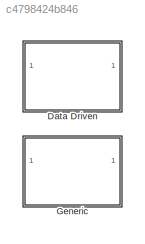
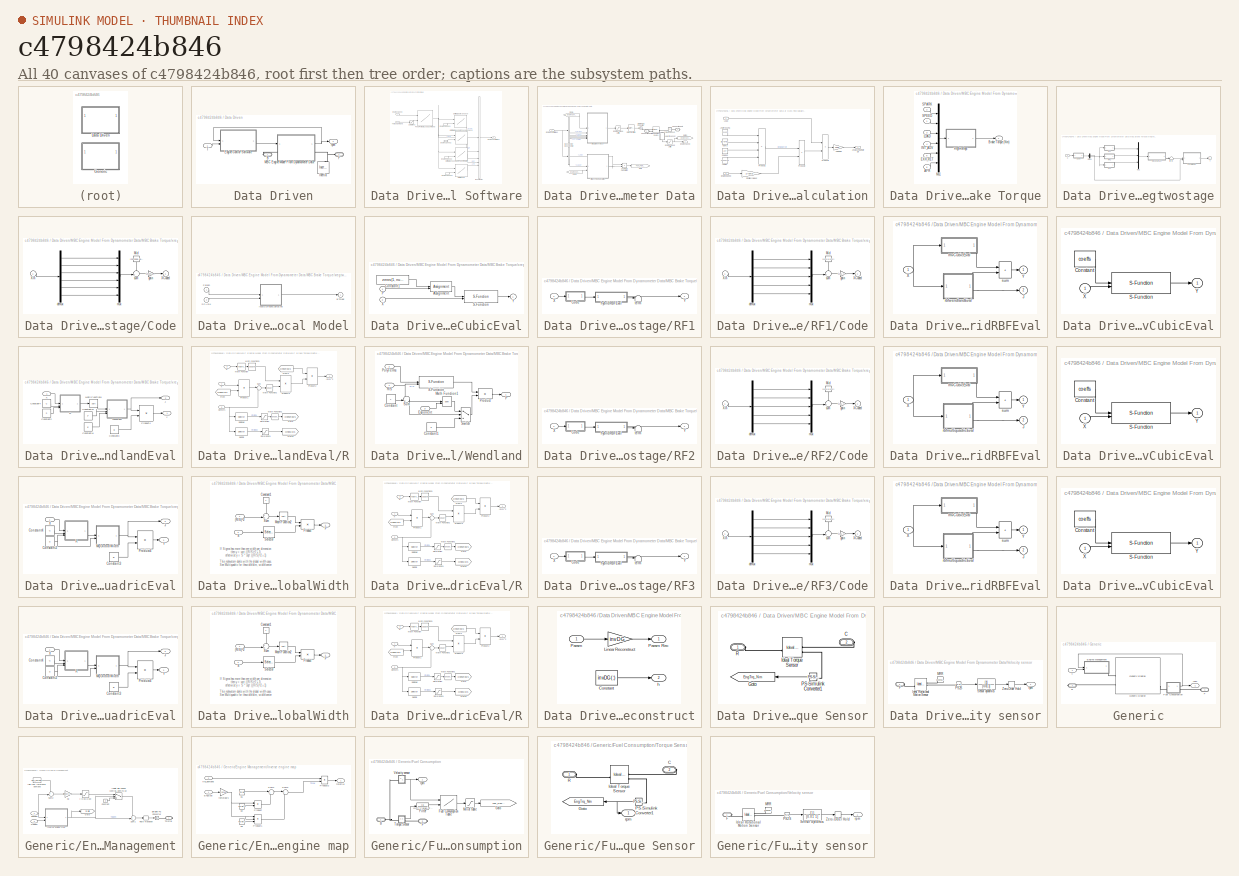
[diagram: thumbnail index - all 40 canvases of the model, root first then tree order]
MODEL slx_c4798424b846
KIND library
CONFIG EnableMultiTasking = on
CONFIG SolverName = ode45
BLOCK [SubSystem] Data Driven
BLOCK [PMIOPort] Data Driven/B
  Side = Right
BLOCK [SubSystem] Data Driven/Engine Control Software
BLOCK [BusCreator] Data Driven/Engine Control Software/Bus Creator
  DisplayOption = bar
  InheritFromInputs = on
  Inputs = 5
BLOCK [Outport] Data Driven/Engine Control Software/Engine Control Bus
  VectorParamsAs1DForOutWhenUnconnected = off
BLOCK [Inport] Data Driven/Engine Control Software/Engine Speed
BLOCK [InportShadow] Data Driven/Engine Control Software/Engine Speed1
BLOCK [InportShadow] Data Driven/Engine Control Software/Engine Speed2
BLOCK [InportShadow] Data Driven/Engine Control Software/Engine Speed3
BLOCK [InportShadow] Data Driven/Engine Control Software/Engine Speed4
BLOCK [Lookup2D] Data Driven/Engine Control Software/Feed-Forward Load Command
  ColumnIndex = Load_Table.X
  InputSameDT = off
  LookUpMeth = Interpolation-Use End Values
  RowIndex = Load_Table.Y
  SaturateOnIntegerOverflow = off
  Table = Load_Table.Z
BLOCK [Lookup2D] Data Driven/Engine Control Software/Optimal AFR
  ColumnIndex = AFR_Table.X
  InputSameDT = off
  LookUpMeth = Interpolation-Use End Values
  RowIndex = AFR_Table.Y
  SaturateOnIntegerOverflow = off
  Table = AFR_Table.Z
BLOCK [Lookup2D] Data Driven/Engine Control Software/Optimal Exhaust Cam Phaser Retard
  ColumnIndex = ECP_Table.X
  InputSameDT = off
  LookUpMeth = Interpolation-Use End Values
  RowIndex = ECP_Table.Y
  SaturateOnIntegerOverflow = off
  Table = ECP_Table.Z
BLOCK [Lookup2D] Data Driven/Engine Control Software/Optimal Intake Cam Phaser Advance
  ColumnIndex = ICP_Table.X
  InputSameDT = off
  LookUpMeth = Interpolation-Use End Values
  RowIndex = ICP_Table.Y
  SaturateOnIntegerOverflow = off
  Table = ICP_Table.Z
BLOCK [Lookup2D] Data Driven/Engine Control Software/Optimal Spark Advance
  ColumnIndex = S_Table.X
  InputSameDT = off
  LookUpMeth = Interpolation-Use End Values
  RowIndex = S_Table.Y
  SaturateOnIntegerOverflow = off
  Table = S_Table.Z
BLOCK [Saturate] Data Driven/Engine Control Software/Saturation2
  LowerLimit = 0
  UpperLimit = inf
BLOCK [Inport] Data Driven/Engine Control Software/Torque Demand
  Port = 2
BLOCK [PMIOPort] Data Driven/F
  Port = 2
  Side = Left
BLOCK [Reference] Data Driven/Inertia  REF=fl_lib/Mechanical/Rotational Elements/Inertia
  NameLocation = right
  SourceBlock = fl_lib/Mechanical/Rotational Elements/Inertia
  SourceType = Inertia
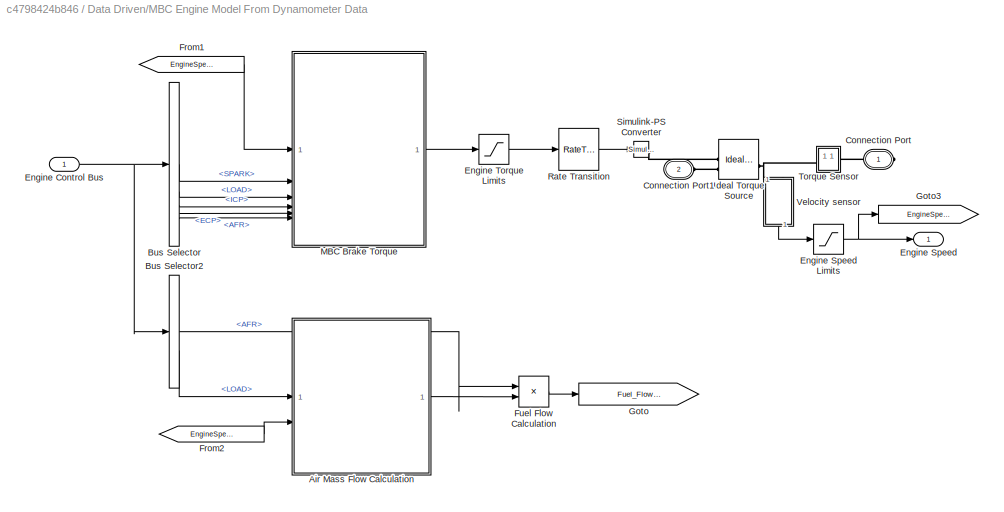
BLOCK [SubSystem] Data Driven/MBC Engine Model From Dynamometer Data
BLOCK [SubSystem] Data Driven/MBC Engine Model From Dynamometer Data/Air Mass Flow Calculation
BLOCK [Constant] Data Driven/MBC Engine Model From Dynamometer Data/Air Mass Flow Calculation/ATM Press Pa
  Value = 101325
BLOCK [Constant] Data Driven/MBC Engine Model From Dynamometer Data/Air Mass Flow Calculation/ATM T K
  Value = 273.15+20
BLOCK [Outport] Data Driven/MBC Engine Model From Dynamometer Data/Air Mass Flow Calculation/Air Mass Flow Rate g//s
  VectorParamsAs1DForOutWhenUnconnected = off
BLOCK [Inport] Data Driven/MBC Engine Model From Dynamometer Data/Air Mass Flow Calculation/Engine Speed
  Port = 2
BLOCK [Gain] Data Driven/MBC Engine Model From Dynamometer Data/Air Mass Flow Calculation/Kg//s to g//s
  Gain = 1000
BLOCK [Inport] Data Driven/MBC Engine Model From Dynamometer Data/Air Mass Flow Calculation/Load
BLOCK [Product] Data Driven/MBC Engine Model From Dynamometer Data/Air Mass Flow Calculation/Product1
  InputSameDT = on
  Inputs = **//
  OutDataTypeStr = Inherit: Same as first input
  SaturateOnIntegerOverflow = on
BLOCK [Product] Data Driven/MBC Engine Model From Dynamometer Data/Air Mass Flow Calculation/Product2
  InputSameDT = on
  Inputs = **
  OutDataTypeStr = Inherit: Same as first input
  SaturateOnIntegerOverflow = on
BLOCK [Product] Data Driven/MBC Engine Model From Dynamometer Data/Air Mass Flow Calculation/Product3
  InputSameDT = on
  Inputs = **
  OutDataTypeStr = Inherit: Same as first input
  SaturateOnIntegerOverflow = on
BLOCK [Constant] Data Driven/MBC Engine Model From Dynamometer Data/Air Mass Flow Calculation/R J//KgK1
  Value = 287
BLOCK [Gain] Data Driven/MBC Engine Model From Dynamometer Data/Air Mass Flow Calculation/RPM to cycle//sec
  Gain = 1/(60*2)
  OutDataTypeStr = Inherit: Same as input
  ParamDataTypeStr = Inherit: Same as input
  SaturateOnIntegerOverflow = on
BLOCK [Constant] Data Driven/MBC Engine Model From Dynamometer Data/Air Mass Flow Calculation/Vd m^3
  Value = ((.25*pi*(84/1000)^2)*96.4/1000)*4
BLOCK [BusSelector] Data Driven/MBC Engine Model From Dynamometer Data/Bus Selector
  OutputSignals = SPARK,LOAD,ICP,ECP,AFR
BLOCK [BusSelector] Data Driven/MBC Engine Model From Dynamometer Data/Bus Selector2
  OutputSignals = AFR,LOAD
BLOCK [PMIOPort] Data Driven/MBC Engine Model From Dynamometer Data/Connection Port
  NameLocation = top
  Side = Right
BLOCK [PMIOPort] Data Driven/MBC Engine Model From Dynamometer Data/Connection Port1
  Port = 2
  Side = Left
BLOCK [Inport] Data Driven/MBC Engine Model From Dynamometer Data/Engine Control Bus
BLOCK [Outport] Data Driven/MBC Engine Model From Dynamometer Data/Engine Speed
  VectorParamsAs1DForOutWhenUnconnected = off
BLOCK [Saturate] Data Driven/MBC Engine Model From Dynamometer Data/Engine Speed Limits
  LowerLimit = 500
  UpperLimit = inf
BLOCK [Saturate] Data Driven/MBC Engine Model From Dynamometer Data/Engine Torque Limits
  LowerLimit = 0.1
  UpperLimit = Inf
BLOCK [From] Data Driven/MBC Engine Model From Dynamometer Data/From1
  GotoTag = EngineSpeed
  TagVisibility = global
BLOCK [From] Data Driven/MBC Engine Model From Dynamometer Data/From2
  GotoTag = EngineSpeed
  TagVisibility = global
BLOCK [Product] Data Driven/MBC Engine Model From Dynamometer Data/Fuel Flow Calculation
  Inputs = /*
  RndMeth = Zero
BLOCK [Goto] Data Driven/MBC Engine Model From Dynamometer Data/Goto
  GotoTag = Fuel_Flow_gps
  TagVisibility = global
BLOCK [Goto] Data Driven/MBC Engine Model From Dynamometer Data/Goto3
  GotoTag = EngineSpeed
  TagVisibility = global
BLOCK [Reference] Data Driven/MBC Engine Model From Dynamometer Data/Ideal Torque Source  REF=fl_lib/Mechanical/Mechanical Sources/Ideal Torque Source
  NameLocation = top
  SourceBlock = fl_lib/Mechanical/Mechanical Sources/Ideal Torque Source
  SourceType = Ideal Torque Source
BLOCK [SubSystem] Data Driven/MBC Engine Model From Dynamometer Data/MBC Brake Torque
BLOCK [Inport] Data Driven/MBC Engine Model From Dynamometer Data/MBC Brake Torque/AFR
  Port = 6
BLOCK [Outport] Data Driven/MBC Engine Model From Dynamometer Data/MBC Brake Torque/Brake Torque (Nm)
  VectorParamsAs1DForOutWhenUnconnected = off
BLOCK [Inport] Data Driven/MBC Engine Model From Dynamometer Data/MBC Brake Torque/EXH_RET
  Port = 5
BLOCK [Inport] Data Driven/MBC Engine Model From Dynamometer Data/MBC Brake Torque/INT_ADV
  Port = 4
BLOCK [Inport] Data Driven/MBC Engine Model From Dynamometer Data/MBC Brake Torque/LOAD
  Port = 3
BLOCK [Mux] Data Driven/MBC Engine Model From Dynamometer Data/MBC Brake Torque/Mx1
  DisplayOption = bar
  Inputs = 6
BLOCK [Inport] Data Driven/MBC Engine Model From Dynamometer Data/MBC Brake Torque/SPARK
  Port = 2
BLOCK [Inport] Data Driven/MBC Engine Model From Dynamometer Data/MBC Brake Torque/SPEED
BLOCK [SubSystem] Data Driven/MBC Engine Model From Dynamometer Data/MBC Brake Torque/xregtwostage
BLOCK [SubSystem] Data Driven/MBC Engine Model From Dynamometer Data/MBC Brake Torque/xregtwostage/Code
BLOCK [Constant] Data Driven/MBC Engine Model From Dynamometer Data/MBC Brake Torque/xregtwostage/Code/Mid
  NameLocation = right
  Value = [25 3255.40527503736 0.832989154540633 22.4723365216774 22.4387901165607 12.6 ]
BLOCK [Outport] Data Driven/MBC Engine Model From Dynamometer Data/MBC Brake Torque/xregtwostage/Code/XCoded
  VectorParamsAs1DForOutWhenUnconnected = off
BLOCK [Inport] Data Driven/MBC Engine Model From Dynamometer Data/MBC Brake Torque/xregtwostage/Code/XIn
BLOCK [Demux] Data Driven/MBC Engine Model From Dynamometer Data/MBC Brake Torque/xregtwostage/Code/demux
  DisplayOption = none
  Outputs = 6
BLOCK [Gain] Data Driven/MBC Engine Model From Dynamometer Data/MBC Brake Torque/xregtwostage/Code/gain
  Gain = [0.04 0.000372414635111356 1.57980884110427 0.0365584433472559 0.0365685104958011 0.434782608695652 ]
  OutDataTypeStr = Inherit: Same as input
  ParamDataTypeStr = Inherit: Same as input
  SaturateOnIntegerOverflow = on
BLOCK [Mux] Data Driven/MBC Engine Model From Dynamometer Data/MBC Brake Torque/xregtwostage/Code/mux
  DisplayOption = bar
  Inputs = 6
BLOCK [Sum] Data Driven/MBC Engine Model From Dynamometer Data/MBC Brake Torque/xregtwostage/Code/sum
  InputSameDT = on
  Inputs = -+|
  OutDataTypeStr = Inherit: Same as first input
  SaturateOnIntegerOverflow = on
BLOCK [Demux] Data Driven/MBC Engine Model From Dynamometer Data/MBC Brake Torque/xregtwostage/Dmx1
  DisplayOption = none
  Outputs = [ 1  -1]
BLOCK [SubSystem] Data Driven/MBC Engine Model From Dynamometer Data/MBC Brake Torque/xregtwostage/Local Model
  UserDataPersistent = on
BLOCK [Outport] Data Driven/MBC Engine Model From Dynamometer Data/MBC Brake Torque/xregtwostage/Local Model/BTQadj
  VectorParamsAs1DForOutWhenUnconnected = off
BLOCK [Inport] Data Driven/MBC Engine Model From Dynamometer Data/MBC Brake Torque/xregtwostage/Local Model/Param
BLOCK [Inport] Data Driven/MBC Engine Model From Dynamometer Data/MBC Brake Torque/xregtwostage/Local Model/SPARK
  Port = 2
BLOCK [SubSystem] Data Driven/MBC Engine Model From Dynamometer Data/MBC Brake Torque/xregtwostage/Local Model/localSurfaceCubicEval
BLOCK [Assignment] Data Driven/MBC Engine Model From Dynamometer Data/MBC Brake Torque/xregtwostage/Local Model/localSurfaceCubicEval/Assignment
  DiagnosticForDimensions = Error
  IndexOptions = Index vector (dialog)
  Indices = termsin
  OutputSizes = [1 1]
BLOCK [Constant] Data Driven/MBC Engine Model From Dynamometer Data/MBC Brake Torque/xregtwostage/Local Model/localSurfaceCubicEval/Constant1
  Value = zeros(1, numterms)
BLOCK [Inport] Data Driven/MBC Engine Model From Dynamometer Data/MBC Brake Torque/xregtwostage/Local Model/localSurfaceCubicEval/P
BLOCK [S-Function] Data Driven/MBC Engine Model From Dynamometer Data/MBC Brake Torque/xregtwostage/Local Model/localSurfaceCubicEval/S-Function
  EnableBusSupport = off
  FunctionName = mvCubicEvalSFnV2
  Parameters = orderM, reorderM, interact
  SFcnIsStateOwnerBlock = off
  SFunctionDeploymentMode = off
  SFunctionModules = mvcubiceval_helper
BLOCK [Inport] Data Driven/MBC Engine Model From Dynamometer Data/MBC Brake Torque/xregtwostage/Local Model/localSurfaceCubicEval/X
  Port = 2
BLOCK [Outport] Data Driven/MBC Engine Model From Dynamometer Data/MBC Brake Torque/xregtwostage/Local Model/localSurfaceCubicEval/Y
  VectorParamsAs1DForOutWhenUnconnected = off
BLOCK [Mux] Data Driven/MBC Engine Model From Dynamometer Data/MBC Brake Torque/xregtwostage/Mx1
  DisplayOption = bar
  Inputs = 3
BLOCK [SubSystem] Data Driven/MBC Engine Model From Dynamometer Data/MBC Brake Torque/xregtwostage/RF1
  UserDataPersistent = on
BLOCK [SubSystem] Data Driven/MBC Engine Model From Dynamometer Data/MBC Brake Torque/xregtwostage/RF1/Code
BLOCK [Constant] Data Driven/MBC Engine Model From Dynamometer Data/MBC Brake Torque/xregtwostage/RF1/Code/Mid
  NameLocation = right
  Value = [0 0 0 0 0 ]
BLOCK [Outport] Data Driven/MBC Engine Model From Dynamometer Data/MBC Brake Torque/xregtwostage/RF1/Code/XCoded
  VectorParamsAs1DForOutWhenUnconnected = off
BLOCK [Inport] Data Driven/MBC Engine Model From Dynamometer Data/MBC Brake Torque/xregtwostage/RF1/Code/XIn
BLOCK [Demux] Data Driven/MBC Engine Model From Dynamometer Data/MBC Brake Torque/xregtwostage/RF1/Code/demux
  DisplayOption = none
  Outputs = 5
BLOCK [Gain] Data Driven/MBC Engine Model From Dynamometer Data/MBC Brake Torque/xregtwostage/RF1/Code/gain
  Gain = [1 1 1 1 1 ]
  OutDataTypeStr = Inherit: Same as input
  ParamDataTypeStr = Inherit: Same as input
  SaturateOnIntegerOverflow = on
BLOCK [Mux] Data Driven/MBC Engine Model From Dynamometer Data/MBC Brake Torque/xregtwostage/RF1/Code/mux
  DisplayOption = bar
  Inputs = 5
BLOCK [Sum] Data Driven/MBC Engine Model From Dynamometer Data/MBC Brake Torque/xregtwostage/RF1/Code/sum
  InputSameDT = on
  Inputs = -+|
  OutDataTypeStr = Inherit: Same as first input
  SaturateOnIntegerOverflow = on
BLOCK [Inport] Data Driven/MBC Engine Model From Dynamometer Data/MBC Brake Torque/xregtwostage/RF1/X
BLOCK [Outport] Data Driven/MBC Engine Model From Dynamometer Data/MBC Brake Torque/xregtwostage/RF1/Y
  VectorParamsAs1DForOutWhenUnconnected = off
BLOCK [SubSystem] Data Driven/MBC Engine Model From Dynamometer Data/MBC Brake Torque/xregtwostage/RF1/hybridRBFEval
BLOCK [Outport] Data Driven/MBC Engine Model From Dynamometer Data/MBC Brake Torque/xregtwostage/RF1/hybridRBFEval/J
  Port = 2
  VectorParamsAs1DForOutWhenUnconnected = off
BLOCK [Inport] Data Driven/MBC Engine Model From Dynamometer Data/MBC Brake Torque/xregtwostage/RF1/hybridRBFEval/X
BLOCK [Outport] Data Driven/MBC Engine Model From Dynamometer Data/MBC Brake Torque/xregtwostage/RF1/hybridRBFEval/Y
  VectorParamsAs1DForOutWhenUnconnected = off
BLOCK [SubSystem] Data Driven/MBC Engine Model From Dynamometer Data/MBC Brake Torque/xregtwostage/RF1/hybridRBFEval/mvCubicEval
BLOCK [Constant] Data Driven/MBC Engine Model From Dynamometer Data/MBC Brake Torque/xregtwostage/RF1/hybridRBFEval/mvCubicEval/Constant
  Value = coeffs
BLOCK [S-Function] Data Driven/MBC Engine Model From Dynamometer Data/MBC Brake Torque/xregtwostage/RF1/hybridRBFEval/mvCubicEval/S-Function
  EnableBusSupport = off
  FunctionName = mvCubicEvalSFnV2
  Parameters = orderM, reorderM, interact
  SFcnIsStateOwnerBlock = off
  SFunctionDeploymentMode = off
  SFunctionModules = mvcubiceval_helper
BLOCK [Inport] Data Driven/MBC Engine Model From Dynamometer Data/MBC Brake Torque/xregtwostage/RF1/hybridRBFEval/mvCubicEval/X
BLOCK [Outport] Data Driven/MBC Engine Model From Dynamometer Data/MBC Brake Torque/xregtwostage/RF1/hybridRBFEval/mvCubicEval/Y
  VectorParamsAs1DForOutWhenUnconnected = off
BLOCK [SubSystem] Data Driven/MBC Engine Model From Dynamometer Data/MBC Brake Torque/xregtwostage/RF1/hybridRBFEval/rbfwendlandEval
BLOCK [Constant] Data Driven/MBC Engine Model From Dynamometer Data/MBC Brake Torque/xregtwostage/RF1/hybridRBFEval/rbfwendlandEval/Constant13
  Value = P
BLOCK [Constant] Data Driven/MBC Engine Model From Dynamometer Data/MBC Brake Torque/xregtwostage/RF1/hybridRBFEval/rbfwendlandEval/Constant14
  Value = E
BLOCK [Constant] Data Driven/MBC Engine Model From Dynamometer Data/MBC Brake Torque/xregtwostage/RF1/hybridRBFEval/rbfwendlandEval/Constant2
  Value = S
  VectorParams1D = off
BLOCK [Constant] Data Driven/MBC Engine Model From Dynamometer Data/MBC Brake Torque/xregtwostage/RF1/hybridRBFEval/rbfwendlandEval/Constant3
  Value = B
BLOCK [Constant] Data Driven/MBC Engine Model From Dynamometer Data/MBC Brake Torque/xregtwostage/RF1/hybridRBFEval/rbfwendlandEval/Constant4
  Value = C
  VectorParams1D = off
BLOCK [Outport] Data Driven/MBC Engine Model From Dynamometer Data/MBC Brake Torque/xregtwostage/RF1/hybridRBFEval/rbfwendlandEval/J
  Port = 2
  VectorParamsAs1DForOutWhenUnconnected = off
BLOCK [Math] Data Driven/MBC Engine Model From Dynamometer Data/MBC Brake Torque/xregtwostage/RF1/hybridRBFEval/rbfwendlandEval/Math Function4
  Operator = sqrt
  SignedPower = on
BLOCK [Product] Data Driven/MBC Engine Model From Dynamometer Data/MBC Brake Torque/xregtwostage/RF1/hybridRBFEval/rbfwendlandEval/Product4
  InputSameDT = on
  Multiplication = Matrix(*)
  OutDataTypeStr = Inherit: Same as first input
  SaturateOnIntegerOverflow = on
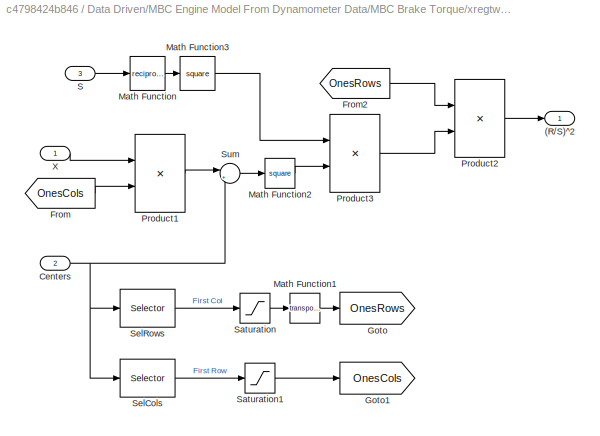
BLOCK [SubSystem] Data Driven/MBC Engine Model From Dynamometer Data/MBC Brake Torque/xregtwostage/RF1/hybridRBFEval/rbfwendlandEval/R
BLOCK [Outport] Data Driven/MBC Engine Model From Dynamometer Data/MBC Brake Torque/xregtwostage/RF1/hybridRBFEval/rbfwendlandEval/R/(R//S)^2
  VectorParamsAs1DForOutWhenUnconnected = off
BLOCK [Inport] Data Driven/MBC Engine Model From Dynamometer Data/MBC Brake Torque/xregtwostage/RF1/hybridRBFEval/rbfwendlandEval/R/Centers 
  Port = 2
BLOCK [From] Data Driven/MBC Engine Model From Dynamometer Data/MBC Brake Torque/xregtwostage/RF1/hybridRBFEval/rbfwendlandEval/R/From
  CloseFcn = tagdialog Close
  GotoTag = OnesCols
BLOCK [From] Data Driven/MBC Engine Model From Dynamometer Data/MBC Brake Torque/xregtwostage/RF1/hybridRBFEval/rbfwendlandEval/R/From2
  CloseFcn = tagdialog Close
  GotoTag = OnesRows
BLOCK [Goto] Data Driven/MBC Engine Model From Dynamometer Data/MBC Brake Torque/xregtwostage/RF1/hybridRBFEval/rbfwendlandEval/R/Goto
  GotoTag = OnesRows
BLOCK [Goto] Data Driven/MBC Engine Model From Dynamometer Data/MBC Brake Torque/xregtwostage/RF1/hybridRBFEval/rbfwendlandEval/R/Goto1
  GotoTag = OnesCols
BLOCK [Math] Data Driven/MBC Engine Model From Dynamometer Data/MBC Brake Torque/xregtwostage/RF1/hybridRBFEval/rbfwendlandEval/R/Math Function
  Operator = reciprocal
  SignedPower = on
BLOCK [Math] Data Driven/MBC Engine Model From Dynamometer Data/MBC Brake Torque/xregtwostage/RF1/hybridRBFEval/rbfwendlandEval/R/Math Function1
  Operator = transpose
  SignedPower = on
BLOCK [Math] Data Driven/MBC Engine Model From Dynamometer Data/MBC Brake Torque/xregtwostage/RF1/hybridRBFEval/rbfwendlandEval/R/Math Function2
  Operator = square
  SignedPower = on
BLOCK [Math] Data Driven/MBC Engine Model From Dynamometer Data/MBC Brake Torque/xregtwostage/RF1/hybridRBFEval/rbfwendlandEval/R/Math Function3
  Operator = square
  SignedPower = on
BLOCK [Product] Data Driven/MBC Engine Model From Dynamometer Data/MBC Brake Torque/xregtwostage/RF1/hybridRBFEval/rbfwendlandEval/R/Product1
  InputSameDT = on
  Multiplication = Matrix(*)
  OutDataTypeStr = Inherit: Same as first input
  SaturateOnIntegerOverflow = on
BLOCK [Product] Data Driven/MBC Engine Model From Dynamometer Data/MBC Brake Torque/xregtwostage/RF1/hybridRBFEval/rbfwendlandEval/R/Product2
  InputSameDT = on
  Multiplication = Matrix(*)
  OutDataTypeStr = Inherit: Same as first input
  SaturateOnIntegerOverflow = on
BLOCK [Product] Data Driven/MBC Engine Model From Dynamometer Data/MBC Brake Torque/xregtwostage/RF1/hybridRBFEval/rbfwendlandEval/R/Product3
  InputSameDT = on
  OutDataTypeStr = Inherit: Same as first input
  SaturateOnIntegerOverflow = on
BLOCK [Inport] Data Driven/MBC Engine Model From Dynamometer Data/MBC Brake Torque/xregtwostage/RF1/hybridRBFEval/rbfwendlandEval/R/S
  Port = 3
BLOCK [Saturate] Data Driven/MBC Engine Model From Dynamometer Data/MBC Brake Torque/xregtwostage/RF1/hybridRBFEval/rbfwendlandEval/R/Saturation
  LowerLimit = 1
  UpperLimit = 1
BLOCK [Saturate] Data Driven/MBC Engine Model From Dynamometer Data/MBC Brake Torque/xregtwostage/RF1/hybridRBFEval/rbfwendlandEval/R/Saturation1
  LowerLimit = 1
  UpperLimit = 1
BLOCK [Selector] Data Driven/MBC Engine Model From Dynamometer Data/MBC Brake Torque/xregtwostage/RF1/hybridRBFEval/rbfwendlandEval/R/SelCols
  IndexOptions = Index vector (dialog),Select all
  Indices = 1,-1
  InputPortWidth = 3
  NumberOfDimensions = 2
  OutputSizes = 1
BLOCK [Selector] Data Driven/MBC Engine Model From Dynamometer Data/MBC Brake Torque/xregtwostage/RF1/hybridRBFEval/rbfwendlandEval/R/SelRows
  IndexOptions = Select all,Index vector (dialog)
  Indices = -1,1
  InputPortWidth = 3
  NumberOfDimensions = 2
  OutputSizes = 1
BLOCK [Sum] Data Driven/MBC Engine Model From Dynamometer Data/MBC Brake Torque/xregtwostage/RF1/hybridRBFEval/rbfwendlandEval/R/Sum
  InputSameDT = on
  Inputs = |+-
  OutDataTypeStr = Inherit: Same as first input
  SaturateOnIntegerOverflow = on
BLOCK [Inport] Data Driven/MBC Engine Model From Dynamometer Data/MBC Brake Torque/xregtwostage/RF1/hybridRBFEval/rbfwendlandEval/R/X
  NameLocation = top
BLOCK [SubSystem] Data Driven/MBC Engine Model From Dynamometer Data/MBC Brake Torque/xregtwostage/RF1/hybridRBFEval/rbfwendlandEval/Wendland
BLOCK [Constant] Data Driven/MBC Engine Model From Dynamometer Data/MBC Brake Torque/xregtwostage/RF1/hybridRBFEval/rbfwendlandEval/Wendland/Constant
BLOCK [Constant] Data Driven/MBC Engine Model From Dynamometer Data/MBC Brake Torque/xregtwostage/RF1/hybridRBFEval/rbfwendlandEval/Wendland/Constant1
  Value = 0
BLOCK [Inport] Data Driven/MBC Engine Model From Dynamometer Data/MBC Brake Torque/xregtwostage/RF1/hybridRBFEval/rbfwendlandEval/Wendland/Exponent
  NameLocation = top
  Port = 3
BLOCK [Math] Data Driven/MBC Engine Model From Dynamometer Data/MBC Brake Torque/xregtwostage/RF1/hybridRBFEval/rbfwendlandEval/Wendland/Math Function1
  Operator = pow
  SignedPower = on
BLOCK [Outport] Data Driven/MBC Engine Model From Dynamometer Data/MBC Brake Torque/xregtwostage/RF1/hybridRBFEval/rbfwendlandEval/Wendland/P
  VectorParamsAs1DForOutWhenUnconnected = off
BLOCK [Inport] Data Driven/MBC Engine Model From Dynamometer Data/MBC Brake Torque/xregtwostage/RF1/hybridRBFEval/rbfwendlandEval/Wendland/PolyTerms
  NameLocation = top
  Port = 2
BLOCK [Product] Data Driven/MBC Engine Model From Dynamometer Data/MBC Brake Torque/xregtwostage/RF1/hybridRBFEval/rbfwendlandEval/Wendland/Product
  InputSameDT = on
  OutDataTypeStr = Inherit: Same as first input
  SaturateOnIntegerOverflow = on
BLOCK [Inport] Data Driven/MBC Engine Model From Dynamometer Data/MBC Brake Torque/xregtwostage/RF1/hybridRBFEval/rbfwendlandEval/Wendland/R//S
  NameLocation = top
BLOCK [S-Function] Data Driven/MBC Engine Model From Dynamometer Data/MBC Brake Torque/xregtwostage/RF1/hybridRBFEval/rbfwendlandEval/Wendland/S-Function
  EnableBusSupport = off
  FunctionName = WendlandEvalSFnV1
  Parameters = NumTerms
  SFcnIsStateOwnerBlock = off
  SFunctionDeploymentMode = off
BLOCK [Sum] Data Driven/MBC Engine Model From Dynamometer Data/MBC Brake Torque/xregtwostage/RF1/hybridRBFEval/rbfwendlandEval/Wendland/Sum
  InputSameDT = on
  Inputs = -+|
  OutDataTypeStr = Inherit: Same as first input
  SaturateOnIntegerOverflow = on
BLOCK [Switch] Data Driven/MBC Engine Model From Dynamometer Data/MBC Brake Torque/xregtwostage/RF1/hybridRBFEval/rbfwendlandEval/Wendland/Switch
  SaturateOnIntegerOverflow = off
BLOCK [Inport] Data Driven/MBC Engine Model From Dynamometer Data/MBC Brake Torque/xregtwostage/RF1/hybridRBFEval/rbfwendlandEval/X
  NameLocation = top
BLOCK [Outport] Data Driven/MBC Engine Model From Dynamometer Data/MBC Brake Torque/xregtwostage/RF1/hybridRBFEval/rbfwendlandEval/Y
  VectorParamsAs1DForOutWhenUnconnected = off
BLOCK [Sum] Data Driven/MBC Engine Model From Dynamometer Data/MBC Brake Torque/xregtwostage/RF1/hybridRBFEval/sum
  IconShape = rectangular
  InputSameDT = on
  OutDataTypeStr = Inherit: Same as first input
  SaturateOnIntegerOverflow = on
BLOCK [Terminator] Data Driven/MBC Engine Model From Dynamometer Data/MBC Brake Torque/xregtwostage/RF1/term
BLOCK [SubSystem] Data Driven/MBC Engine Model From Dynamometer Data/MBC Brake Torque/xregtwostage/RF2
  UserDataPersistent = on
BLOCK [SubSystem] Data Driven/MBC Engine Model From Dynamometer Data/MBC Brake Torque/xregtwostage/RF2/Code
BLOCK [Constant] Data Driven/MBC Engine Model From Dynamometer Data/MBC Brake Torque/xregtwostage/RF2/Code/Mid
  NameLocation = right
  Value = [0 0 0 0 0 ]
BLOCK [Outport] Data Driven/MBC Engine Model From Dynamometer Data/MBC Brake Torque/xregtwostage/RF2/Code/XCoded
  VectorParamsAs1DForOutWhenUnconnected = off
BLOCK [Inport] Data Driven/MBC Engine Model From Dynamometer Data/MBC Brake Torque/xregtwostage/RF2/Code/XIn
BLOCK [Demux] Data Driven/MBC Engine Model From Dynamometer Data/MBC Brake Torque/xregtwostage/RF2/Code/demux
  DisplayOption = none
  Outputs = 5
BLOCK [Gain] Data Driven/MBC Engine Model From Dynamometer Data/MBC Brake Torque/xregtwostage/RF2/Code/gain
  Gain = [1 1 1 1 1 ]
  OutDataTypeStr = Inherit: Same as input
  ParamDataTypeStr = Inherit: Same as input
  SaturateOnIntegerOverflow = on
BLOCK [Mux] Data Driven/MBC Engine Model From Dynamometer Data/MBC Brake Torque/xregtwostage/RF2/Code/mux
  DisplayOption = bar
  Inputs = 5
BLOCK [Sum] Data Driven/MBC Engine Model From Dynamometer Data/MBC Brake Torque/xregtwostage/RF2/Code/sum
  InputSameDT = on
  Inputs = -+|
  OutDataTypeStr = Inherit: Same as first input
  SaturateOnIntegerOverflow = on
BLOCK [Inport] Data Driven/MBC Engine Model From Dynamometer Data/MBC Brake Torque/xregtwostage/RF2/X
BLOCK [Outport] Data Driven/MBC Engine Model From Dynamometer Data/MBC Brake Torque/xregtwostage/RF2/Y
  VectorParamsAs1DForOutWhenUnconnected = off
BLOCK [SubSystem] Data Driven/MBC Engine Model From Dynamometer Data/MBC Brake Torque/xregtwostage/RF2/hybridRBFEval
BLOCK [Outport] Data Driven/MBC Engine Model From Dynamometer Data/MBC Brake Torque/xregtwostage/RF2/hybridRBFEval/J
  Port = 2
  VectorParamsAs1DForOutWhenUnconnected = off
BLOCK [Inport] Data Driven/MBC Engine Model From Dynamometer Data/MBC Brake Torque/xregtwostage/RF2/hybridRBFEval/X
BLOCK [Outport] Data Driven/MBC Engine Model From Dynamometer Data/MBC Brake Torque/xregtwostage/RF2/hybridRBFEval/Y
  VectorParamsAs1DForOutWhenUnconnected = off
BLOCK [SubSystem] Data Driven/MBC Engine Model From Dynamometer Data/MBC Brake Torque/xregtwostage/RF2/hybridRBFEval/mvCubicEval
BLOCK [Constant] Data Driven/MBC Engine Model From Dynamometer Data/MBC Brake Torque/xregtwostage/RF2/hybridRBFEval/mvCubicEval/Constant
  Value = coeffs
BLOCK [S-Function] Data Driven/MBC Engine Model From Dynamometer Data/MBC Brake Torque/xregtwostage/RF2/hybridRBFEval/mvCubicEval/S-Function
  EnableBusSupport = off
  FunctionName = mvCubicEvalSFnV2
  Parameters = orderM, reorderM, interact
  SFcnIsStateOwnerBlock = off
  SFunctionDeploymentMode = off
  SFunctionModules = mvcubiceval_helper
BLOCK [Inport] Data Driven/MBC Engine Model From Dynamometer Data/MBC Brake Torque/xregtwostage/RF2/hybridRBFEval/mvCubicEval/X
BLOCK [Outport] Data Driven/MBC Engine Model From Dynamometer Data/MBC Brake Torque/xregtwostage/RF2/hybridRBFEval/mvCubicEval/Y
  VectorParamsAs1DForOutWhenUnconnected = off
BLOCK [SubSystem] Data Driven/MBC Engine Model From Dynamometer Data/MBC Brake Torque/xregtwostage/RF2/hybridRBFEval/rbfmultiquadricEval
BLOCK [Constant] Data Driven/MBC Engine Model From Dynamometer Data/MBC Brake Torque/xregtwostage/RF2/hybridRBFEval/rbfmultiquadricEval/Constant2
  Value = S
  VectorParams1D = off
BLOCK [Constant] Data Driven/MBC Engine Model From Dynamometer Data/MBC Brake Torque/xregtwostage/RF2/hybridRBFEval/rbfmultiquadricEval/Constant3
  Value = B
BLOCK [Constant] Data Driven/MBC Engine Model From Dynamometer Data/MBC Brake Torque/xregtwostage/RF2/hybridRBFEval/rbfmultiquadricEval/Constant4
  Value = C
  VectorParams1D = off
BLOCK [Outport] Data Driven/MBC Engine Model From Dynamometer Data/MBC Brake Torque/xregtwostage/RF2/hybridRBFEval/rbfmultiquadricEval/J
  Port = 2
  VectorParamsAs1DForOutWhenUnconnected = off
BLOCK [SubSystem] Data Driven/MBC Engine Model From Dynamometer Data/MBC Brake Torque/xregtwostage/RF2/hybridRBFEval/rbfmultiquadricEval/MqGlobalWidth
BLOCK [Inport] Data Driven/MBC Engine Model From Dynamometer Data/MBC Brake Torque/xregtwostage/RF2/hybridRBFEval/rbfmultiquadricEval/MqGlobalWidth/(R//S)^2
  NameLocation = top
BLOCK [Constant] Data Driven/MBC Engine Model From Dynamometer Data/MBC Brake Torque/xregtwostage/RF2/hybridRBFEval/rbfmultiquadricEval/MqGlobalWidth/Constant1
  NameLocation = left
BLOCK [Math] Data Driven/MBC Engine Model From Dynamometer Data/MBC Brake Torque/xregtwostage/RF2/hybridRBFEval/rbfmultiquadricEval/MqGlobalWidth/Math Function2
  Operator = sqrt
  SignedPower = on
BLOCK [Outport] Data Driven/MBC Engine Model From Dynamometer Data/MBC Brake Torque/xregtwostage/RF2/hybridRBFEval/rbfmultiquadricEval/MqGlobalWidth/P
  VectorParamsAs1DForOutWhenUnconnected = off
BLOCK [Product] Data Driven/MBC Engine Model From Dynamometer Data/MBC Brake Torque/xregtwostage/RF2/hybridRBFEval/rbfmultiquadricEval/MqGlobalWidth/Product
  InputSameDT = on
  OutDataTypeStr = Inherit: Same as first input
  SaturateOnIntegerOverflow = on
BLOCK [Inport] Data Driven/MBC Engine Model From Dynamometer Data/MBC Brake Torque/xregtwostage/RF2/hybridRBFEval/rbfmultiquadricEval/MqGlobalWidth/S
  NameLocation = top
  Port = 2
BLOCK [Selector] Data Driven/MBC Engine Model From Dynamometer Data/MBC Brake Torque/xregtwostage/RF2/hybridRBFEval/rbfmultiquadricEval/MqGlobalWidth/Selector
  IndexOptions = Index vector (dialog),Index vector (dialog)
  Indices = 1,1
  NumberOfDimensions = 2
  OutputSizes = 1
BLOCK [Sum] Data Driven/MBC Engine Model From Dynamometer Data/MBC Brake Torque/xregtwostage/RF2/hybridRBFEval/rbfmultiquadricEval/MqGlobalWidth/Sum
  InputSameDT = on
  Inputs = ++|
  OutDataTypeStr = Inherit: Same as first input
  SaturateOnIntegerOverflow = on
BLOCK [Product] Data Driven/MBC Engine Model From Dynamometer Data/MBC Brake Torque/xregtwostage/RF2/hybridRBFEval/rbfmultiquadricEval/Product4
  InputSameDT = on
  Multiplication = Matrix(*)
  OutDataTypeStr = Inherit: Same as first input
  SaturateOnIntegerOverflow = on
BLOCK [SubSystem] Data Driven/MBC Engine Model From Dynamometer Data/MBC Brake Torque/xregtwostage/RF2/hybridRBFEval/rbfmultiquadricEval/R
BLOCK [Outport] Data Driven/MBC Engine Model From Dynamometer Data/MBC Brake Torque/xregtwostage/RF2/hybridRBFEval/rbfmultiquadricEval/R/(R//S)^2
  VectorParamsAs1DForOutWhenUnconnected = off
BLOCK [Inport] Data Driven/MBC Engine Model From Dynamometer Data/MBC Brake Torque/xregtwostage/RF2/hybridRBFEval/rbfmultiquadricEval/R/Centers 
  Port = 2
BLOCK [From] Data Driven/MBC Engine Model From Dynamometer Data/MBC Brake Torque/xregtwostage/RF2/hybridRBFEval/rbfmultiquadricEval/R/From
  CloseFcn = tagdialog Close
  GotoTag = OnesCols
BLOCK [From] Data Driven/MBC Engine Model From Dynamometer Data/MBC Brake Torque/xregtwostage/RF2/hybridRBFEval/rbfmultiquadricEval/R/From2
  CloseFcn = tagdialog Close
  GotoTag = OnesRows
BLOCK [Goto] Data Driven/MBC Engine Model From Dynamometer Data/MBC Brake Torque/xregtwostage/RF2/hybridRBFEval/rbfmultiquadricEval/R/Goto
  GotoTag = OnesRows
BLOCK [Goto] Data Driven/MBC Engine Model From Dynamometer Data/MBC Brake Torque/xregtwostage/RF2/hybridRBFEval/rbfmultiquadricEval/R/Goto1
  GotoTag = OnesCols
BLOCK [Math] Data Driven/MBC Engine Model From Dynamometer Data/MBC Brake Torque/xregtwostage/RF2/hybridRBFEval/rbfmultiquadricEval/R/Math Function
  Operator = reciprocal
  SignedPower = on
BLOCK [Math] Data Driven/MBC Engine Model From Dynamometer Data/MBC Brake Torque/xregtwostage/RF2/hybridRBFEval/rbfmultiquadricEval/R/Math Function1
  Operator = transpose
  SignedPower = on
BLOCK [Math] Data Driven/MBC Engine Model From Dynamometer Data/MBC Brake Torque/xregtwostage/RF2/hybridRBFEval/rbfmultiquadricEval/R/Math Function2
  Operator = square
  SignedPower = on
BLOCK [Math] Data Driven/MBC Engine Model From Dynamometer Data/MBC Brake Torque/xregtwostage/RF2/hybridRBFEval/rbfmultiquadricEval/R/Math Function3
  Operator = square
  SignedPower = on
BLOCK [Product] Data Driven/MBC Engine Model From Dynamometer Data/MBC Brake Torque/xregtwostage/RF2/hybridRBFEval/rbfmultiquadricEval/R/Product1
  InputSameDT = on
  Multiplication = Matrix(*)
  OutDataTypeStr = Inherit: Same as first input
  SaturateOnIntegerOverflow = on
BLOCK [Product] Data Driven/MBC Engine Model From Dynamometer Data/MBC Brake Torque/xregtwostage/RF2/hybridRBFEval/rbfmultiquadricEval/R/Product2
  InputSameDT = on
  Multiplication = Matrix(*)
  OutDataTypeStr = Inherit: Same as first input
  SaturateOnIntegerOverflow = on
BLOCK [Product] Data Driven/MBC Engine Model From Dynamometer Data/MBC Brake Torque/xregtwostage/RF2/hybridRBFEval/rbfmultiquadricEval/R/Product3
  InputSameDT = on
  OutDataTypeStr = Inherit: Same as first input
  SaturateOnIntegerOverflow = on
BLOCK [Inport] Data Driven/MBC Engine Model From Dynamometer Data/MBC Brake Torque/xregtwostage/RF2/hybridRBFEval/rbfmultiquadricEval/R/S
  Port = 3
BLOCK [Saturate] Data Driven/MBC Engine Model From Dynamometer Data/MBC Brake Torque/xregtwostage/RF2/hybridRBFEval/rbfmultiquadricEval/R/Saturation
  LowerLimit = 1
  UpperLimit = 1
BLOCK [Saturate] Data Driven/MBC Engine Model From Dynamometer Data/MBC Brake Torque/xregtwostage/RF2/hybridRBFEval/rbfmultiquadricEval/R/Saturation1
  LowerLimit = 1
  UpperLimit = 1
BLOCK [Selector] Data Driven/MBC Engine Model From Dynamometer Data/MBC Brake Torque/xregtwostage/RF2/hybridRBFEval/rbfmultiquadricEval/R/SelCols
  IndexOptions = Index vector (dialog),Select all
  Indices = 1,-1
  InputPortWidth = 3
  NumberOfDimensions = 2
  OutputSizes = 1
BLOCK [Selector] Data Driven/MBC Engine Model From Dynamometer Data/MBC Brake Torque/xregtwostage/RF2/hybridRBFEval/rbfmultiquadricEval/R/SelRows
  IndexOptions = Select all,Index vector (dialog)
  Indices = -1,1
  InputPortWidth = 3
  NumberOfDimensions = 2
  OutputSizes = 1
BLOCK [Sum] Data Driven/MBC Engine Model From Dynamometer Data/MBC Brake Torque/xregtwostage/RF2/hybridRBFEval/rbfmultiquadricEval/R/Sum
  InputSameDT = on
  Inputs = |+-
  OutDataTypeStr = Inherit: Same as first input
  SaturateOnIntegerOverflow = on
BLOCK [Inport] Data Driven/MBC Engine Model From Dynamometer Data/MBC Brake Torque/xregtwostage/RF2/hybridRBFEval/rbfmultiquadricEval/R/X
  NameLocation = top
BLOCK [Inport] Data Driven/MBC Engine Model From Dynamometer Data/MBC Brake Torque/xregtwostage/RF2/hybridRBFEval/rbfmultiquadricEval/X
  NameLocation = top
BLOCK [Outport] Data Driven/MBC Engine Model From Dynamometer Data/MBC Brake Torque/xregtwostage/RF2/hybridRBFEval/rbfmultiquadricEval/Y
  VectorParamsAs1DForOutWhenUnconnected = off
BLOCK [Sum] Data Driven/MBC Engine Model From Dynamometer Data/MBC Brake Torque/xregtwostage/RF2/hybridRBFEval/sum
  IconShape = rectangular
  InputSameDT = on
  OutDataTypeStr = Inherit: Same as first input
  SaturateOnIntegerOverflow = on
BLOCK [Terminator] Data Driven/MBC Engine Model From Dynamometer Data/MBC Brake Torque/xregtwostage/RF2/term
BLOCK [SubSystem] Data Driven/MBC Engine Model From Dynamometer Data/MBC Brake Torque/xregtwostage/RF3
  UserDataPersistent = on
BLOCK [SubSystem] Data Driven/MBC Engine Model From Dynamometer Data/MBC Brake Torque/xregtwostage/RF3/Code
BLOCK [Constant] Data Driven/MBC Engine Model From Dynamometer Data/MBC Brake Torque/xregtwostage/RF3/Code/Mid
  NameLocation = right
  Value = [0 0 0 0 0 ]
BLOCK [Outport] Data Driven/MBC Engine Model From Dynamometer Data/MBC Brake Torque/xregtwostage/RF3/Code/XCoded
  VectorParamsAs1DForOutWhenUnconnected = off
BLOCK [Inport] Data Driven/MBC Engine Model From Dynamometer Data/MBC Brake Torque/xregtwostage/RF3/Code/XIn
BLOCK [Demux] Data Driven/MBC Engine Model From Dynamometer Data/MBC Brake Torque/xregtwostage/RF3/Code/demux
  DisplayOption = none
  Outputs = 5
BLOCK [Gain] Data Driven/MBC Engine Model From Dynamometer Data/MBC Brake Torque/xregtwostage/RF3/Code/gain
  Gain = [1 1 1 1 1 ]
  OutDataTypeStr = Inherit: Same as input
  ParamDataTypeStr = Inherit: Same as input
  SaturateOnIntegerOverflow = on
BLOCK [Mux] Data Driven/MBC Engine Model From Dynamometer Data/MBC Brake Torque/xregtwostage/RF3/Code/mux
  DisplayOption = bar
  Inputs = 5
BLOCK [Sum] Data Driven/MBC Engine Model From Dynamometer Data/MBC Brake Torque/xregtwostage/RF3/Code/sum
  InputSameDT = on
  Inputs = -+|
  OutDataTypeStr = Inherit: Same as first input
  SaturateOnIntegerOverflow = on
BLOCK [Inport] Data Driven/MBC Engine Model From Dynamometer Data/MBC Brake Torque/xregtwostage/RF3/X
BLOCK [Outport] Data Driven/MBC Engine Model From Dynamometer Data/MBC Brake Torque/xregtwostage/RF3/Y
  VectorParamsAs1DForOutWhenUnconnected = off
BLOCK [SubSystem] Data Driven/MBC Engine Model From Dynamometer Data/MBC Brake Torque/xregtwostage/RF3/hybridRBFEval
BLOCK [Outport] Data Driven/MBC Engine Model From Dynamometer Data/MBC Brake Torque/xregtwostage/RF3/hybridRBFEval/J
  Port = 2
  VectorParamsAs1DForOutWhenUnconnected = off
BLOCK [Inport] Data Driven/MBC Engine Model From Dynamometer Data/MBC Brake Torque/xregtwostage/RF3/hybridRBFEval/X
BLOCK [Outport] Data Driven/MBC Engine Model From Dynamometer Data/MBC Brake Torque/xregtwostage/RF3/hybridRBFEval/Y
  VectorParamsAs1DForOutWhenUnconnected = off
BLOCK [SubSystem] Data Driven/MBC Engine Model From Dynamometer Data/MBC Brake Torque/xregtwostage/RF3/hybridRBFEval/mvCubicEval
BLOCK [Constant] Data Driven/MBC Engine Model From Dynamometer Data/MBC Brake Torque/xregtwostage/RF3/hybridRBFEval/mvCubicEval/Constant
  Value = coeffs
BLOCK [S-Function] Data Driven/MBC Engine Model From Dynamometer Data/MBC Brake Torque/xregtwostage/RF3/hybridRBFEval/mvCubicEval/S-Function
  EnableBusSupport = off
  FunctionName = mvCubicEvalSFnV2
  Parameters = orderM, reorderM, interact
  SFcnIsStateOwnerBlock = off
  SFunctionDeploymentMode = off
  SFunctionModules = mvcubiceval_helper
BLOCK [Inport] Data Driven/MBC Engine Model From Dynamometer Data/MBC Brake Torque/xregtwostage/RF3/hybridRBFEval/mvCubicEval/X
BLOCK [Outport] Data Driven/MBC Engine Model From Dynamometer Data/MBC Brake Torque/xregtwostage/RF3/hybridRBFEval/mvCubicEval/Y
  VectorParamsAs1DForOutWhenUnconnected = off
BLOCK [SubSystem] Data Driven/MBC Engine Model From Dynamometer Data/MBC Brake Torque/xregtwostage/RF3/hybridRBFEval/rbfmultiquadricEval
BLOCK [Constant] Data Driven/MBC Engine Model From Dynamometer Data/MBC Brake Torque/xregtwostage/RF3/hybridRBFEval/rbfmultiquadricEval/Constant2
  Value = S
  VectorParams1D = off
BLOCK [Constant] Data Driven/MBC Engine Model From Dynamometer Data/MBC Brake Torque/xregtwostage/RF3/hybridRBFEval/rbfmultiquadricEval/Constant3
  Value = B
BLOCK [Constant] Data Driven/MBC Engine Model From Dynamometer Data/MBC Brake Torque/xregtwostage/RF3/hybridRBFEval/rbfmultiquadricEval/Constant4
  Value = C
  VectorParams1D = off
BLOCK [Outport] Data Driven/MBC Engine Model From Dynamometer Data/MBC Brake Torque/xregtwostage/RF3/hybridRBFEval/rbfmultiquadricEval/J
  Port = 2
  VectorParamsAs1DForOutWhenUnconnected = off
BLOCK [SubSystem] Data Driven/MBC Engine Model From Dynamometer Data/MBC Brake Torque/xregtwostage/RF3/hybridRBFEval/rbfmultiquadricEval/MqGlobalWidth
BLOCK [Inport] Data Driven/MBC Engine Model From Dynamometer Data/MBC Brake Torque/xregtwostage/RF3/hybridRBFEval/rbfmultiquadricEval/MqGlobalWidth/(R//S)^2
  NameLocation = top
BLOCK [Constant] Data Driven/MBC Engine Model From Dynamometer Data/MBC Brake Torque/xregtwostage/RF3/hybridRBFEval/rbfmultiquadricEval/MqGlobalWidth/Constant1
  NameLocation = left
BLOCK [Math] Data Driven/MBC Engine Model From Dynamometer Data/MBC Brake Torque/xregtwostage/RF3/hybridRBFEval/rbfmultiquadricEval/MqGlobalWidth/Math Function2
  Operator = sqrt
  SignedPower = on
BLOCK [Outport] Data Driven/MBC Engine Model From Dynamometer Data/MBC Brake Torque/xregtwostage/RF3/hybridRBFEval/rbfmultiquadricEval/MqGlobalWidth/P
  VectorParamsAs1DForOutWhenUnconnected = off
BLOCK [Product] Data Driven/MBC Engine Model From Dynamometer Data/MBC Brake Torque/xregtwostage/RF3/hybridRBFEval/rbfmultiquadricEval/MqGlobalWidth/Product
  InputSameDT = on
  OutDataTypeStr = Inherit: Same as first input
  SaturateOnIntegerOverflow = on
BLOCK [Inport] Data Driven/MBC Engine Model From Dynamometer Data/MBC Brake Torque/xregtwostage/RF3/hybridRBFEval/rbfmultiquadricEval/MqGlobalWidth/S
  NameLocation = top
  Port = 2
BLOCK [Selector] Data Driven/MBC Engine Model From Dynamometer Data/MBC Brake Torque/xregtwostage/RF3/hybridRBFEval/rbfmultiquadricEval/MqGlobalWidth/Selector
  IndexOptions = Index vector (dialog),Index vector (dialog)
  Indices = 1,1
  NumberOfDimensions = 2
  OutputSizes = 1
BLOCK [Sum] Data Driven/MBC Engine Model From Dynamometer Data/MBC Brake Torque/xregtwostage/RF3/hybridRBFEval/rbfmultiquadricEval/MqGlobalWidth/Sum
  InputSameDT = on
  Inputs = ++|
  OutDataTypeStr = Inherit: Same as first input
  SaturateOnIntegerOverflow = on
BLOCK [Product] Data Driven/MBC Engine Model From Dynamometer Data/MBC Brake Torque/xregtwostage/RF3/hybridRBFEval/rbfmultiquadricEval/Product4
  InputSameDT = on
  Multiplication = Matrix(*)
  OutDataTypeStr = Inherit: Same as first input
  SaturateOnIntegerOverflow = on
BLOCK [SubSystem] Data Driven/MBC Engine Model From Dynamometer Data/MBC Brake Torque/xregtwostage/RF3/hybridRBFEval/rbfmultiquadricEval/R
BLOCK [Outport] Data Driven/MBC Engine Model From Dynamometer Data/MBC Brake Torque/xregtwostage/RF3/hybridRBFEval/rbfmultiquadricEval/R/(R//S)^2
  VectorParamsAs1DForOutWhenUnconnected = off
BLOCK [Inport] Data Driven/MBC Engine Model From Dynamometer Data/MBC Brake Torque/xregtwostage/RF3/hybridRBFEval/rbfmultiquadricEval/R/Centers 
  Port = 2
BLOCK [From] Data Driven/MBC Engine Model From Dynamometer Data/MBC Brake Torque/xregtwostage/RF3/hybridRBFEval/rbfmultiquadricEval/R/From
  CloseFcn = tagdialog Close
  GotoTag = OnesCols
BLOCK [From] Data Driven/MBC Engine Model From Dynamometer Data/MBC Brake Torque/xregtwostage/RF3/hybridRBFEval/rbfmultiquadricEval/R/From2
  CloseFcn = tagdialog Close
  GotoTag = OnesRows
BLOCK [Goto] Data Driven/MBC Engine Model From Dynamometer Data/MBC Brake Torque/xregtwostage/RF3/hybridRBFEval/rbfmultiquadricEval/R/Goto
  GotoTag = OnesRows
BLOCK [Goto] Data Driven/MBC Engine Model From Dynamometer Data/MBC Brake Torque/xregtwostage/RF3/hybridRBFEval/rbfmultiquadricEval/R/Goto1
  GotoTag = OnesCols
BLOCK [Math] Data Driven/MBC Engine Model From Dynamometer Data/MBC Brake Torque/xregtwostage/RF3/hybridRBFEval/rbfmultiquadricEval/R/Math Function
  Operator = reciprocal
  SignedPower = on
BLOCK [Math] Data Driven/MBC Engine Model From Dynamometer Data/MBC Brake Torque/xregtwostage/RF3/hybridRBFEval/rbfmultiquadricEval/R/Math Function1
  Operator = transpose
  SignedPower = on
BLOCK [Math] Data Driven/MBC Engine Model From Dynamometer Data/MBC Brake Torque/xregtwostage/RF3/hybridRBFEval/rbfmultiquadricEval/R/Math Function2
  Operator = square
  SignedPower = on
BLOCK [Math] Data Driven/MBC Engine Model From Dynamometer Data/MBC Brake Torque/xregtwostage/RF3/hybridRBFEval/rbfmultiquadricEval/R/Math Function3
  Operator = square
  SignedPower = on
BLOCK [Product] Data Driven/MBC Engine Model From Dynamometer Data/MBC Brake Torque/xregtwostage/RF3/hybridRBFEval/rbfmultiquadricEval/R/Product1
  InputSameDT = on
  Multiplication = Matrix(*)
  OutDataTypeStr = Inherit: Same as first input
  SaturateOnIntegerOverflow = on
BLOCK [Product] Data Driven/MBC Engine Model From Dynamometer Data/MBC Brake Torque/xregtwostage/RF3/hybridRBFEval/rbfmultiquadricEval/R/Product2
  InputSameDT = on
  Multiplication = Matrix(*)
  OutDataTypeStr = Inherit: Same as first input
  SaturateOnIntegerOverflow = on
BLOCK [Product] Data Driven/MBC Engine Model From Dynamometer Data/MBC Brake Torque/xregtwostage/RF3/hybridRBFEval/rbfmultiquadricEval/R/Product3
  InputSameDT = on
  OutDataTypeStr = Inherit: Same as first input
  SaturateOnIntegerOverflow = on
BLOCK [Inport] Data Driven/MBC Engine Model From Dynamometer Data/MBC Brake Torque/xregtwostage/RF3/hybridRBFEval/rbfmultiquadricEval/R/S
  Port = 3
BLOCK [Saturate] Data Driven/MBC Engine Model From Dynamometer Data/MBC Brake Torque/xregtwostage/RF3/hybridRBFEval/rbfmultiquadricEval/R/Saturation
  LowerLimit = 1
  UpperLimit = 1
BLOCK [Saturate] Data Driven/MBC Engine Model From Dynamometer Data/MBC Brake Torque/xregtwostage/RF3/hybridRBFEval/rbfmultiquadricEval/R/Saturation1
  LowerLimit = 1
  UpperLimit = 1
BLOCK [Selector] Data Driven/MBC Engine Model From Dynamometer Data/MBC Brake Torque/xregtwostage/RF3/hybridRBFEval/rbfmultiquadricEval/R/SelCols
  IndexOptions = Index vector (dialog),Select all
  Indices = 1,-1
  InputPortWidth = 3
  NumberOfDimensions = 2
  OutputSizes = 1
BLOCK [Selector] Data Driven/MBC Engine Model From Dynamometer Data/MBC Brake Torque/xregtwostage/RF3/hybridRBFEval/rbfmultiquadricEval/R/SelRows
  IndexOptions = Select all,Index vector (dialog)
  Indices = -1,1
  InputPortWidth = 3
  NumberOfDimensions = 2
  OutputSizes = 1
BLOCK [Sum] Data Driven/MBC Engine Model From Dynamometer Data/MBC Brake Torque/xregtwostage/RF3/hybridRBFEval/rbfmultiquadricEval/R/Sum
  InputSameDT = on
  Inputs = |+-
  OutDataTypeStr = Inherit: Same as first input
  SaturateOnIntegerOverflow = on
BLOCK [Inport] Data Driven/MBC Engine Model From Dynamometer Data/MBC Brake Torque/xregtwostage/RF3/hybridRBFEval/rbfmultiquadricEval/R/X
  NameLocation = top
BLOCK [Inport] Data Driven/MBC Engine Model From Dynamometer Data/MBC Brake Torque/xregtwostage/RF3/hybridRBFEval/rbfmultiquadricEval/X
  NameLocation = top
BLOCK [Outport] Data Driven/MBC Engine Model From Dynamometer Data/MBC Brake Torque/xregtwostage/RF3/hybridRBFEval/rbfmultiquadricEval/Y
  VectorParamsAs1DForOutWhenUnconnected = off
BLOCK [Sum] Data Driven/MBC Engine Model From Dynamometer Data/MBC Brake Torque/xregtwostage/RF3/hybridRBFEval/sum
  IconShape = rectangular
  InputSameDT = on
  OutDataTypeStr = Inherit: Same as first input
  SaturateOnIntegerOverflow = on
BLOCK [Terminator] Data Driven/MBC Engine Model From Dynamometer Data/MBC Brake Torque/xregtwostage/RF3/term
BLOCK [SubSystem] Data Driven/MBC Engine Model From Dynamometer Data/MBC Brake Torque/xregtwostage/Reconstruct
  UserDataPersistent = on
BLOCK [Constant] Data Driven/MBC Engine Model From Dynamometer Data/MBC Brake Torque/xregtwostage/Reconstruct/Constant
  Value = invDG(:)
BLOCK [Gain] Data Driven/MBC Engine Model From Dynamometer Data/MBC Brake Torque/xregtwostage/Reconstruct/Linear Reconstruct
  Gain = invDG
  Multiplication = Matrix(K*u)
  OutDataTypeStr = Inherit: Same as input
  ParamDataTypeStr = Inherit: Same as input
  SaturateOnIntegerOverflow = on
BLOCK [Inport] Data Driven/MBC Engine Model From Dynamometer Data/MBC Brake Torque/xregtwostage/Reconstruct/Param
BLOCK [Outport] Data Driven/MBC Engine Model From Dynamometer Data/MBC Brake Torque/xregtwostage/Reconstruct/Param Rec
  VectorParamsAs1DForOutWhenUnconnected = off
BLOCK [Outport] Data Driven/MBC Engine Model From Dynamometer Data/MBC Brake Torque/xregtwostage/Reconstruct/h
  Port = 2
  VectorParamsAs1DForOutWhenUnconnected = off
BLOCK [Inport] Data Driven/MBC Engine Model From Dynamometer Data/MBC Brake Torque/xregtwostage/X
BLOCK [Outport] Data Driven/MBC Engine Model From Dynamometer Data/MBC Brake Torque/xregtwostage/Y
  VectorParamsAs1DForOutWhenUnconnected = off
BLOCK [Terminator] Data Driven/MBC Engine Model From Dynamometer Data/MBC Brake Torque/xregtwostage/term
BLOCK [RateTransition] Data Driven/MBC Engine Model From Dynamometer Data/Rate Transition
  NameLocation = top
BLOCK [Reference] Data Driven/MBC Engine Model From Dynamometer Data/Simulink-PS Converter  REF=nesl_utility/Simulink-PS
Converter
  SourceBlock = nesl_utility/Simulink-PS\nConverter
  SourceType = Simulink-PS\nConverter
BLOCK [SubSystem] Data Driven/MBC Engine Model From Dynamometer Data/Torque Sensor
  NameLocation = top
BLOCK [PMIOPort] Data Driven/MBC Engine Model From Dynamometer Data/Torque Sensor/C
  Port = 2
  Side = Right
BLOCK [Goto] Data Driven/MBC Engine Model From Dynamometer Data/Torque Sensor/Goto
  GotoTag = EngTrq_Nm
  NameLocation = top
  TagVisibility = global
BLOCK [Reference] Data Driven/MBC Engine Model From Dynamometer Data/Torque Sensor/Ideal Torque Sensor  REF=fl_lib/Mechanical/Mechanical Sensors/Ideal Torque Sensor
  SourceBlock = fl_lib/Mechanical/Mechanical Sensors/Ideal Torque Sensor
  SourceType = Ideal Torque Sensor
BLOCK [Reference] Data Driven/MBC Engine Model From Dynamometer Data/Torque Sensor/PS-Simulink Converter1  REF=nesl_utility/PS-Simulink
Converter
  NameLocation = top
  SourceBlock = nesl_utility/PS-Simulink\nConverter
  SourceType = PS-Simulink\nConverter
BLOCK [PMIOPort] Data Driven/MBC Engine Model From Dynamometer Data/Torque Sensor/R
  Side = Left
BLOCK [SubSystem] Data Driven/MBC Engine Model From Dynamometer Data/Velocity sensor
  NameLocation = right
BLOCK [PMIOPort] Data Driven/MBC Engine Model From Dynamometer Data/Velocity sensor/F
  Side = Left
BLOCK [Reference] Data Driven/MBC Engine Model From Dynamometer Data/Velocity sensor/Ideal Rotational Motion Sensor  REF=fl_lib/Mechanical/Mechanical Sensors/Ideal Rotational
Motion Sensor
  SourceBlock = fl_lib/Mechanical/Mechanical Sensors/Ideal Rotational\nMotion Sensor
  SourceType = Ideal Rotational\nMotion Sensor
BLOCK [Reference] Data Driven/MBC Engine Model From Dynamometer Data/Velocity sensor/MRR  REF=fl_lib/Mechanical/Rotational Elements/Mechanical
Rotational Reference
  NameLocation = top
  SourceBlock = fl_lib/Mechanical/Rotational Elements/Mechanical\nRotational Reference
  SourceType = Mechanical\nRotational Reference
BLOCK [Reference] Data Driven/MBC Engine Model From Dynamometer Data/Velocity sensor/PS2S  REF=nesl_utility/PS-Simulink
Converter
  SourceBlock = nesl_utility/PS-Simulink\nConverter
  SourceType = PS-Simulink\nConverter
BLOCK [TransferFcn] Data Driven/MBC Engine Model From Dynamometer Data/Velocity sensor/Sensor dynamics
  Denominator = [0.01 1]
BLOCK [ZeroOrderHold] Data Driven/MBC Engine Model From Dynamometer Data/Velocity sensor/Zero-Order Hold
  SampleTime = 0.01
BLOCK [Outport] Data Driven/MBC Engine Model From Dynamometer Data/Velocity sensor/rpm
  VectorParamsAs1DForOutWhenUnconnected = off
BLOCK [Inport] Data Driven/T
BLOCK [Outport] Data Driven/rpm
  VectorParamsAs1DForOutWhenUnconnected = off
BLOCK [SubSystem] Generic
BLOCK [PMIOPort] Generic/B
  Port = 2
  Side = Right
BLOCK [SubSystem] Generic/Engine Management
BLOCK [Constant] Generic/Engine Management/Constant
  SampleTime = 0.01
  Value = 0
BLOCK [Inport] Generic/Engine Management/EngSpd
BLOCK [Goto] Generic/Engine Management/Goto
  GotoTag = throttle
  TagVisibility = global
BLOCK [Constant] Generic/Engine Management/Idle rpm reference demand
  SampleTime = 0.01
  Value = DCT_Param.ICE.Idle_Ref_Spd
BLOCK [Switch] Generic/Engine Management/Inhibit idle speed controller if THdem>0.02
  SaturateOnIntegerOverflow = off
  Threshold = 0.02
BLOCK [SubSystem] Generic/Engine Management/Inverse engine map
BLOCK [Inport] Generic/Engine Management/Inverse engine map/EngSpd
BLOCK [Product] Generic/Engine Management/Inverse engine map/Product
  InputSameDT = on
  OutDataTypeStr = Inherit: Same as first input
  SaturateOnIntegerOverflow = on
BLOCK [Product] Generic/Engine Management/Inverse engine map/Product1
  InputSameDT = on
  Inputs = 3
  OutDataTypeStr = Inherit: Same as first input
  SaturateOnIntegerOverflow = on
BLOCK [Product] Generic/Engine Management/Inverse engine map/Product2
  InputSameDT = on
  Inputs = */
  OutDataTypeStr = Inherit: Same as first input
  SaturateOnIntegerOverflow = on
BLOCK [Sum] Generic/Engine Management/Inverse engine map/Sum1
  InputSameDT = on
  Inputs = |++
  OutDataTypeStr = Inherit: Same as first input
  SaturateOnIntegerOverflow = on
BLOCK [Sum] Generic/Engine Management/Inverse engine map/Sum2
  InputSameDT = on
  Inputs = |+-
  OutDataTypeStr = Inherit: Same as first input
  SaturateOnIntegerOverflow = on
BLOCK [Constant] Generic/Engine Management/Inverse engine map/p1
  Value = P0/w0
BLOCK [Constant] Generic/Engine Management/Inverse engine map/p2
  Value = P0/w0^2
BLOCK [Constant] Generic/Engine Management/Inverse engine map/p3
  Value = P0/w0^3
BLOCK [Gain] Generic/Engine Management/Inverse engine map/rpm2rad//s
  Gain = 2*pi/60
  OutDataTypeStr = Inherit: Same as input
  ParamDataTypeStr = Inherit: Same as input
  SaturateOnIntegerOverflow = on
BLOCK [Outport] Generic/Engine Management/Inverse engine map/throttle
  VectorParamsAs1DForOutWhenUnconnected = off
BLOCK [Inport] Generic/Engine Management/Inverse engine map/trq_demand
  Port = 2
BLOCK [Gain] Generic/Engine Management/Kp
  Gain = 0.005*2*pi/60
  OutDataTypeStr = Inherit: Same as input
  ParamDataTypeStr = Inherit: Same as input
  SaturateOnIntegerOverflow = on
BLOCK [RateTransition] Generic/Engine Management/Rate Transition
BLOCK [Reference] Generic/Engine Management/Simulink-PS Converter  REF=nesl_utility/Simulink-PS
Converter
  SourceBlock = nesl_utility/Simulink-PS\nConverter
  SourceType = Simulink-PS\nConverter
BLOCK [Sum] Generic/Engine Management/Sum1
  InputSameDT = on
  Inputs = ++|
  OutDataTypeStr = Inherit: Same as first input
  SaturateOnIntegerOverflow = on
BLOCK [Sum] Generic/Engine Management/Sum2
  InputSameDT = on
  Inputs = +-|
  OutDataTypeStr = Inherit: Same as first input
  SaturateOnIntegerOverflow = on
BLOCK [PMIOPort] Generic/Engine Management/Throttle
  Side = Right
BLOCK [Inport] Generic/Engine Management/TrqDem
  Port = 2
BLOCK [Saturate] Generic/Engine Management/[-0.02,0.02]
  LowerLimit = -0.02
  UpperLimit = 0.02
BLOCK [PMIOPort] Generic/F
  Side = Left
BLOCK [SubSystem] Generic/Fuel Consumption
BLOCK [PMIOPort] Generic/Fuel Consumption/B
  Side = Left
BLOCK [PMIOPort] Generic/Fuel Consumption/F
  Port = 2
  Side = Right
BLOCK [TransferFcn] Generic/Fuel Consumption/Filter
  Denominator = [DCT_Param.Transmission.Abstract.Ratio_Time_Const*2 1]
BLOCK [Lookup2D] Generic/Fuel Consumption/Fuel Consumption Table
  ColumnIndex = DCT_Param.ICE.FC.Torque_Vector
  InputSameDT = off
  RowIndex = DCT_Param.ICE.FC.Speed_Vector
  SaturateOnIntegerOverflow = off
  Table = DCT_Param.ICE.FC.Consumption_Table
BLOCK [Goto] Generic/Fuel Consumption/Goto
  GotoTag = Fuel_Flow_gps
  TagVisibility = global
BLOCK [Saturate] Generic/Fuel Consumption/Min of table
  LowerLimit = min(min(DCT_Param.ICE.FC.Consumption_Table))
  UpperLimit = Inf
BLOCK [SubSystem] Generic/Fuel Consumption/Torque Sensor
BLOCK [PMIOPort] Generic/Fuel Consumption/Torque Sensor/C
  Port = 2
  Side = Right
BLOCK [Goto] Generic/Fuel Consumption/Torque Sensor/Goto
  GotoTag = EngTrq_Nm
  NameLocation = top
  TagVisibility = global
BLOCK [Reference] Generic/Fuel Consumption/Torque Sensor/Ideal Torque Sensor  REF=fl_lib/Mechanical/Mechanical Sensors/Ideal Torque Sensor
  SourceBlock = fl_lib/Mechanical/Mechanical Sensors/Ideal Torque Sensor
  SourceType = Ideal Torque Sensor
BLOCK [Reference] Generic/Fuel Consumption/Torque Sensor/PS-Simulink Converter1  REF=nesl_utility/PS-Simulink
Converter
  NameLocation = top
  SourceBlock = nesl_utility/PS-Simulink\nConverter
  SourceType = PS-Simulink\nConverter
BLOCK [PMIOPort] Generic/Fuel Consumption/Torque Sensor/R
  Side = Left
BLOCK [Outport] Generic/Fuel Consumption/Torque Sensor/rpm
  VectorParamsAs1DForOutWhenUnconnected = off
BLOCK [SubSystem] Generic/Fuel Consumption/Velocity sensor
BLOCK [PMIOPort] Generic/Fuel Consumption/Velocity sensor/F
  Side = Left
BLOCK [Reference] Generic/Fuel Consumption/Velocity sensor/Ideal Rotational Motion Sensor  REF=fl_lib/Mechanical/Mechanical Sensors/Ideal Rotational
Motion Sensor
  SourceBlock = fl_lib/Mechanical/Mechanical Sensors/Ideal Rotational\nMotion Sensor
  SourceType = Ideal Rotational\nMotion Sensor
BLOCK [Reference] Generic/Fuel Consumption/Velocity sensor/MRR  REF=fl_lib/Mechanical/Rotational Elements/Mechanical
Rotational Reference
  NameLocation = top
  SourceBlock = fl_lib/Mechanical/Rotational Elements/Mechanical\nRotational Reference
  SourceType = Mechanical\nRotational Reference
BLOCK [Reference] Generic/Fuel Consumption/Velocity sensor/PS2S  REF=nesl_utility/PS-Simulink
Converter
  SourceBlock = nesl_utility/PS-Simulink\nConverter
  SourceType = PS-Simulink\nConverter
BLOCK [TransferFcn] Generic/Fuel Consumption/Velocity sensor/Sensor dynamics
  Denominator = [0.01 1]
BLOCK [ZeroOrderHold] Generic/Fuel Consumption/Velocity sensor/Zero-Order Hold
  SampleTime = 0.01
BLOCK [Outport] Generic/Fuel Consumption/Velocity sensor/rpm
  VectorParamsAs1DForOutWhenUnconnected = off
BLOCK [Outport] Generic/Fuel Consumption/rpm
  VectorParamsAs1DForOutWhenUnconnected = off
BLOCK [Reference] Generic/Generic Engine  REF=sdl_lib/Engines & Motors/Generic Engine
  SourceBlock = sdl_lib/Engines & Motors/Generic Engine
  SourceType = Generic Engine
BLOCK [Inport] Generic/T
BLOCK [Outport] Generic/rpm
  NameLocation = top
  VectorParamsAs1DForOutWhenUnconnected = off
ANNOTATION Data Driven/MBC Engine Model From Dynamometer Data/MBC Brake Torque/xregtwostage/RF2/hybridRBFEval/rbfmultiquadricEval/MqGlobalWidth: If Sigma has more than one width per dimension then y = sqrt ((R/S)^2 +1) otherwise y = S * sqrt ((R/S)^2 +1) This subsystem deals with the global width case. See Multiquadric for thewidth/dim, width/center and width/center/dim cases.
ANNOTATION Data Driven/MBC Engine Model From Dynamometer Data/MBC Brake Torque/xregtwostage/RF3/hybridRBFEval/rbfmultiquadricEval/MqGlobalWidth: If Sigma has more than one width per dimension then y = sqrt ((R/S)^2 +1) otherwise y = S * sqrt ((R/S)^2 +1) This subsystem deals with the global width case. See Multiquadric for thewidth/dim, width/center and width/center/dim cases.
LINE Data Driven/Engine Control Software/Bus Creator:1 -> Data Driven/Engine Control Software/Engine Control Bus:1
LINE Data Driven/Engine Control Software/Engine Speed1:1 -> Data Driven/Engine Control Software/Optimal Spark Advance:2
LINE Data Driven/Engine Control Software/Engine Speed2:1 -> Data Driven/Engine Control Software/Optimal Intake Cam Phaser Advance:2
LINE Data Driven/Engine Control Software/Engine Speed3:1 -> Data Driven/Engine Control Software/Optimal Exhaust Cam Phaser Retard:2
LINE Data Driven/Engine Control Software/Engine Speed4:1 -> Data Driven/Engine Control Software/Optimal AFR:2
LINE Data Driven/Engine Control Software/Engine Speed:1 -> Data Driven/Engine Control Software/Feed-Forward Load Command:1
NET Data Driven/Engine Control Software/Feed-Forward Load Command:1 -> Data Driven/Engine Control Software/Bus Creator:1, Data Driven/Engine Control Software/Optimal AFR:1, Data Driven/Engine Control Software/Optimal Exhaust Cam Phaser Retard:1, Data Driven/Engine Control Software/Optimal Intake Cam Phaser Advance:1, Data Driven/Engine Control Software/Optimal Spark Advance:1
LINE Data Driven/Engine Control Software/Optimal AFR:1 -> Data Driven/Engine Control Software/Bus Creator:5
LINE Data Driven/Engine Control Software/Optimal Exhaust Cam Phaser Retard:1 -> Data Driven/Engine Control Software/Bus Creator:4
LINE Data Driven/Engine Control Software/Optimal Intake Cam Phaser Advance:1 -> Data Driven/Engine Control Software/Bus Creator:3
LINE Data Driven/Engine Control Software/Optimal Spark Advance:1 -> Data Driven/Engine Control Software/Bus Creator:2
LINE Data Driven/Engine Control Software/Saturation2:1 -> Data Driven/Engine Control Software/Feed-Forward Load Command:2
LINE Data Driven/Engine Control Software/Torque Demand:1 -> Data Driven/Engine Control Software/Saturation2:1
LINE Data Driven/Engine Control Software:1 -> Data Driven/MBC Engine Model From Dynamometer Data:1
LINE Data Driven/MBC Engine Model From Dynamometer Data/Air Mass Flow Calculation/ATM Press Pa:1 -> Data Driven/MBC Engine Model From Dynamometer Data/Air Mass Flow Calculation/Product1:1
LINE Data Driven/MBC Engine Model From Dynamometer Data/Air Mass Flow Calculation/ATM T K:1 -> Data Driven/MBC Engine Model From Dynamometer Data/Air Mass Flow Calculation/Product1:4
LINE Data Driven/MBC Engine Model From Dynamometer Data/Air Mass Flow Calculation/Engine Speed:1 -> Data Driven/MBC Engine Model From Dynamometer Data/Air Mass Flow Calculation/RPM to cycle//sec:1
LINE Data Driven/MBC Engine Model From Dynamometer Data/Air Mass Flow Calculation/Kg//s to g//s:1 -> Data Driven/MBC Engine Model From Dynamometer Data/Air Mass Flow Calculation/Air Mass Flow Rate g//s:1
LINE Data Driven/MBC Engine Model From Dynamometer Data/Air Mass Flow Calculation/Load:1 -> Data Driven/MBC Engine Model From Dynamometer Data/Air Mass Flow Calculation/Product3:1
LINE Data Driven/MBC Engine Model From Dynamometer Data/Air Mass Flow Calculation/Product1:1 -> Data Driven/MBC Engine Model From Dynamometer Data/Air Mass Flow Calculation/Product2:1
LINE Data Driven/MBC Engine Model From Dynamometer Data/Air Mass Flow Calculation/Product2:1 -> Data Driven/MBC Engine Model From Dynamometer Data/Air Mass Flow Calculation/Product3:2
LINE Data Driven/MBC Engine Model From Dynamometer Data/Air Mass Flow Calculation/Product3:1 -> Data Driven/MBC Engine Model From Dynamometer Data/Air Mass Flow Calculation/Kg//s to g//s:1
LINE Data Driven/MBC Engine Model From Dynamometer Data/Air Mass Flow Calculation/R J//KgK1:1 -> Data Driven/MBC Engine Model From Dynamometer Data/Air Mass Flow Calculation/Product1:3
LINE Data Driven/MBC Engine Model From Dynamometer Data/Air Mass Flow Calculation/RPM to cycle//sec:1 -> Data Driven/MBC Engine Model From Dynamometer Data/Air Mass Flow Calculation/Product2:2
LINE Data Driven/MBC Engine Model From Dynamometer Data/Air Mass Flow Calculation/Vd m^3:1 -> Data Driven/MBC Engine Model From Dynamometer Data/Air Mass Flow Calculation/Product1:2
LINE Data Driven/MBC Engine Model From Dynamometer Data/Air Mass Flow Calculation:1 -> Data Driven/MBC Engine Model From Dynamometer Data/Fuel Flow Calculation:2
LINE Data Driven/MBC Engine Model From Dynamometer Data/Bus Selector2:1 -> Data Driven/MBC Engine Model From Dynamometer Data/Fuel Flow Calculation:1
LINE Data Driven/MBC Engine Model From Dynamometer Data/Bus Selector2:2 -> Data Driven/MBC Engine Model From Dynamometer Data/Air Mass Flow Calculation:1
LINE Data Driven/MBC Engine Model From Dynamometer Data/Bus Selector:1 -> Data Driven/MBC Engine Model From Dynamometer Data/MBC Brake Torque:2
LINE Data Driven/MBC Engine Model From Dynamometer Data/Bus Selector:2 -> Data Driven/MBC Engine Model From Dynamometer Data/MBC Brake Torque:3
LINE Data Driven/MBC Engine Model From Dynamometer Data/Bus Selector:3 -> Data Driven/MBC Engine Model From Dynamometer Data/MBC Brake Torque:4
LINE Data Driven/MBC Engine Model From Dynamometer Data/Bus Selector:4 -> Data Driven/MBC Engine Model From Dynamometer Data/MBC Brake Torque:5
LINE Data Driven/MBC Engine Model From Dynamometer Data/Bus Selector:5 -> Data Driven/MBC Engine Model From Dynamometer Data/MBC Brake Torque:6
NET Data Driven/MBC Engine Model From Dynamometer Data/Engine Control Bus:1 -> Data Driven/MBC Engine Model From Dynamometer Data/Bus Selector2:1, Data Driven/MBC Engine Model From Dynamometer Data/Bus Selector:1
NET Data Driven/MBC Engine Model From Dynamometer Data/Engine Speed Limits:1 -> Data Driven/MBC Engine Model From Dynamometer Data/Engine Speed:1, Data Driven/MBC Engine Model From Dynamometer Data/Goto3:1
LINE Data Driven/MBC Engine Model From Dynamometer Data/Engine Torque Limits:1 -> Data Driven/MBC Engine Model From Dynamometer Data/Rate Transition:1
LINE Data Driven/MBC Engine Model From Dynamometer Data/From1:1 -> Data Driven/MBC Engine Model From Dynamometer Data/MBC Brake Torque:1
LINE Data Driven/MBC Engine Model From Dynamometer Data/From2:1 -> Data Driven/MBC Engine Model From Dynamometer Data/Air Mass Flow Calculation:2
LINE Data Driven/MBC Engine Model From Dynamometer Data/Fuel Flow Calculation:1 -> Data Driven/MBC Engine Model From Dynamometer Data/Goto:1
LINE Data Driven/MBC Engine Model From Dynamometer Data/MBC Brake Torque/AFR:1 -> Data Driven/MBC Engine Model From Dynamometer Data/MBC Brake Torque/Mx1:6
LINE Data Driven/MBC Engine Model From Dynamometer Data/MBC Brake Torque/EXH_RET:1 -> Data Driven/MBC Engine Model From Dynamometer Data/MBC Brake Torque/Mx1:5
LINE Data Driven/MBC Engine Model From Dynamometer Data/MBC Brake Torque/INT_ADV:1 -> Data Driven/MBC Engine Model From Dynamometer Data/MBC Brake Torque/Mx1:4
LINE Data Driven/MBC Engine Model From Dynamometer Data/MBC Brake Torque/LOAD:1 -> Data Driven/MBC Engine Model From Dynamometer Data/MBC Brake Torque/Mx1:3
LINE Data Driven/MBC Engine Model From Dynamometer Data/MBC Brake Torque/Mx1:1 -> Data Driven/MBC Engine Model From Dynamometer Data/MBC Brake Torque/xregtwostage:1
LINE Data Driven/MBC Engine Model From Dynamometer Data/MBC Brake Torque/SPARK:1 -> Data Driven/MBC Engine Model From Dynamometer Data/MBC Brake Torque/Mx1:1
LINE Data Driven/MBC Engine Model From Dynamometer Data/MBC Brake Torque/SPEED:1 -> Data Driven/MBC Engine Model From Dynamometer Data/MBC Brake Torque/Mx1:2
LINE Data Driven/MBC Engine Model From Dynamometer Data/MBC Brake Torque/xregtwostage/Code/Mid:1 -> Data Driven/MBC Engine Model From Dynamometer Data/MBC Brake Torque/xregtwostage/Code/sum:1
LINE Data Driven/MBC Engine Model From Dynamometer Data/MBC Brake Torque/xregtwostage/Code/XIn:1 -> Data Driven/MBC Engine Model From Dynamometer Data/MBC Brake Torque/xregtwostage/Code/demux:1
LINE Data Driven/MBC Engine Model From Dynamometer Data/MBC Brake Torque/xregtwostage/Code/demux:1 -> Data Driven/MBC Engine Model From Dynamometer Data/MBC Brake Torque/xregtwostage/Code/mux:1
LINE Data Driven/MBC Engine Model From Dynamometer Data/MBC Brake Torque/xregtwostage/Code/demux:2 -> Data Driven/MBC Engine Model From Dynamometer Data/MBC Brake Torque/xregtwostage/Code/mux:2
LINE Data Driven/MBC Engine Model From Dynamometer Data/MBC Brake Torque/xregtwostage/Code/demux:3 -> Data Driven/MBC Engine Model From Dynamometer Data/MBC Brake Torque/xregtwostage/Code/mux:3
LINE Data Driven/MBC Engine Model From Dynamometer Data/MBC Brake Torque/xregtwostage/Code/demux:4 -> Data Driven/MBC Engine Model From Dynamometer Data/MBC Brake Torque/xregtwostage/Code/mux:4
LINE Data Driven/MBC Engine Model From Dynamometer Data/MBC Brake Torque/xregtwostage/Code/demux:5 -> Data Driven/MBC Engine Model From Dynamometer Data/MBC Brake Torque/xregtwostage/Code/mux:5
LINE Data Driven/MBC Engine Model From Dynamometer Data/MBC Brake Torque/xregtwostage/Code/demux:6 -> Data Driven/MBC Engine Model From Dynamometer Data/MBC Brake Torque/xregtwostage/Code/mux:6
LINE Data Driven/MBC Engine Model From Dynamometer Data/MBC Brake Torque/xregtwostage/Code/gain:1 -> Data Driven/MBC Engine Model From Dynamometer Data/MBC Brake Torque/xregtwostage/Code/XCoded:1
LINE Data Driven/MBC Engine Model From Dynamometer Data/MBC Brake Torque/xregtwostage/Code/mux:1 -> Data Driven/MBC Engine Model From Dynamometer Data/MBC Brake Torque/xregtwostage/Code/sum:2
LINE Data Driven/MBC Engine Model From Dynamometer Data/MBC Brake Torque/xregtwostage/Code/sum:1 -> Data Driven/MBC Engine Model From Dynamometer Data/MBC Brake Torque/xregtwostage/Code/gain:1
LINE Data Driven/MBC Engine Model From Dynamometer Data/MBC Brake Torque/xregtwostage/Code:1 -> Data Driven/MBC Engine Model From Dynamometer Data/MBC Brake Torque/xregtwostage/Dmx1:1
LINE Data Driven/MBC Engine Model From Dynamometer Data/MBC Brake Torque/xregtwostage/Dmx1:1 -> Data Driven/MBC Engine Model From Dynamometer Data/MBC Brake Torque/xregtwostage/Local Model:2
NET Data Driven/MBC Engine Model From Dynamometer Data/MBC Brake Torque/xregtwostage/Dmx1:2 -> Data Driven/MBC Engine Model From Dynamometer Data/MBC Brake Torque/xregtwostage/RF1:1, Data Driven/MBC Engine Model From Dynamometer Data/MBC Brake Torque/xregtwostage/RF2:1, Data Driven/MBC Engine Model From Dynamometer Data/MBC Brake Torque/xregtwostage/RF3:1
LINE Data Driven/MBC Engine Model From Dynamometer Data/MBC Brake Torque/xregtwostage/Local Model/Param:1 -> Data Driven/MBC Engine Model From Dynamometer Data/MBC Brake Torque/xregtwostage/Local Model/localSurfaceCubicEval:1
LINE Data Driven/MBC Engine Model From Dynamometer Data/MBC Brake Torque/xregtwostage/Local Model/SPARK:1 -> Data Driven/MBC Engine Model From Dynamometer Data/MBC Brake Torque/xregtwostage/Local Model/localSurfaceCubicEval:2
LINE Data Driven/MBC Engine Model From Dynamometer Data/MBC Brake Torque/xregtwostage/Local Model/localSurfaceCubicEval/Assignment:1 -> Data Driven/MBC Engine Model From Dynamometer Data/MBC Brake Torque/xregtwostage/Local Model/localSurfaceCubicEval/S-Function:1
LINE Data Driven/MBC Engine Model From Dynamometer Data/MBC Brake Torque/xregtwostage/Local Model/localSurfaceCubicEval/Constant1:1 -> Data Driven/MBC Engine Model From Dynamometer Data/MBC Brake Torque/xregtwostage/Local Model/localSurfaceCubicEval/Assignment:1
LINE Data Driven/MBC Engine Model From Dynamometer Data/MBC Brake Torque/xregtwostage/Local Model/localSurfaceCubicEval/P:1 -> Data Driven/MBC Engine Model From Dynamometer Data/MBC Brake Torque/xregtwostage/Local Model/localSurfaceCubicEval/Assignment:2
LINE Data Driven/MBC Engine Model From Dynamometer Data/MBC Brake Torque/xregtwostage/Local Model/localSurfaceCubicEval/S-Function:1 -> Data Driven/MBC Engine Model From Dynamometer Data/MBC Brake Torque/xregtwostage/Local Model/localSurfaceCubicEval/Y:1
LINE Data Driven/MBC Engine Model From Dynamometer Data/MBC Brake Torque/xregtwostage/Local Model/localSurfaceCubicEval/X:1 -> Data Driven/MBC Engine Model From Dynamometer Data/MBC Brake Torque/xregtwostage/Local Model/localSurfaceCubicEval/S-Function:2
LINE Data Driven/MBC Engine Model From Dynamometer Data/MBC Brake Torque/xregtwostage/Local Model/localSurfaceCubicEval:1 -> Data Driven/MBC Engine Model From Dynamometer Data/MBC Brake Torque/xregtwostage/Local Model/BTQadj:1
LINE Data Driven/MBC Engine Model From Dynamometer Data/MBC Brake Torque/xregtwostage/Local Model:1 -> Data Driven/MBC Engine Model From Dynamometer Data/MBC Brake Torque/xregtwostage/Y:1
LINE Data Driven/MBC Engine Model From Dynamometer Data/MBC Brake Torque/xregtwostage/Mx1:1 -> Data Driven/MBC Engine Model From Dynamometer Data/MBC Brake Torque/xregtwostage/Reconstruct:1
LINE Data Driven/MBC Engine Model From Dynamometer Data/MBC Brake Torque/xregtwostage/RF1/Code/Mid:1 -> Data Driven/MBC Engine Model From Dynamometer Data/MBC Brake Torque/xregtwostage/RF1/Code/sum:1
LINE Data Driven/MBC Engine Model From Dynamometer Data/MBC Brake Torque/xregtwostage/RF1/Code/XIn:1 -> Data Driven/MBC Engine Model From Dynamometer Data/MBC Brake Torque/xregtwostage/RF1/Code/demux:1
LINE Data Driven/MBC Engine Model From Dynamometer Data/MBC Brake Torque/xregtwostage/RF1/Code/demux:1 -> Data Driven/MBC Engine Model From Dynamometer Data/MBC Brake Torque/xregtwostage/RF1/Code/mux:1
LINE Data Driven/MBC Engine Model From Dynamometer Data/MBC Brake Torque/xregtwostage/RF1/Code/demux:2 -> Data Driven/MBC Engine Model From Dynamometer Data/MBC Brake Torque/xregtwostage/RF1/Code/mux:2
LINE Data Driven/MBC Engine Model From Dynamometer Data/MBC Brake Torque/xregtwostage/RF1/Code/demux:3 -> Data Driven/MBC Engine Model From Dynamometer Data/MBC Brake Torque/xregtwostage/RF1/Code/mux:3
LINE Data Driven/MBC Engine Model From Dynamometer Data/MBC Brake Torque/xregtwostage/RF1/Code/demux:4 -> Data Driven/MBC Engine Model From Dynamometer Data/MBC Brake Torque/xregtwostage/RF1/Code/mux:4
LINE Data Driven/MBC Engine Model From Dynamometer Data/MBC Brake Torque/xregtwostage/RF1/Code/demux:5 -> Data Driven/MBC Engine Model From Dynamometer Data/MBC Brake Torque/xregtwostage/RF1/Code/mux:5
LINE Data Driven/MBC Engine Model From Dynamometer Data/MBC Brake Torque/xregtwostage/RF1/Code/gain:1 -> Data Driven/MBC Engine Model From Dynamometer Data/MBC Brake Torque/xregtwostage/RF1/Code/XCoded:1
LINE Data Driven/MBC Engine Model From Dynamometer Data/MBC Brake Torque/xregtwostage/RF1/Code/mux:1 -> Data Driven/MBC Engine Model From Dynamometer Data/MBC Brake Torque/xregtwostage/RF1/Code/sum:2
LINE Data Driven/MBC Engine Model From Dynamometer Data/MBC Brake Torque/xregtwostage/RF1/Code/sum:1 -> Data Driven/MBC Engine Model From Dynamometer Data/MBC Brake Torque/xregtwostage/RF1/Code/gain:1
LINE Data Driven/MBC Engine Model From Dynamometer Data/MBC Brake Torque/xregtwostage/RF1/Code:1 -> Data Driven/MBC Engine Model From Dynamometer Data/MBC Brake Torque/xregtwostage/RF1/hybridRBFEval:1
LINE Data Driven/MBC Engine Model From Dynamometer Data/MBC Brake Torque/xregtwostage/RF1/X:1 -> Data Driven/MBC Engine Model From Dynamometer Data/MBC Brake Torque/xregtwostage/RF1/Code:1
NET Data Driven/MBC Engine Model From Dynamometer Data/MBC Brake Torque/xregtwostage/RF1/hybridRBFEval/X:1 -> Data Driven/MBC Engine Model From Dynamometer Data/MBC Brake Torque/xregtwostage/RF1/hybridRBFEval/mvCubicEval:1, Data Driven/MBC Engine Model From Dynamometer Data/MBC Brake Torque/xregtwostage/RF1/hybridRBFEval/rbfwendlandEval:1
LINE Data Driven/MBC Engine Model From Dynamometer Data/MBC Brake Torque/xregtwostage/RF1/hybridRBFEval/mvCubicEval/Constant:1 -> Data Driven/MBC Engine Model From Dynamometer Data/MBC Brake Torque/xregtwostage/RF1/hybridRBFEval/mvCubicEval/S-Function:1
LINE Data Driven/MBC Engine Model From Dynamometer Data/MBC Brake Torque/xregtwostage/RF1/hybridRBFEval/mvCubicEval/S-Function:1 -> Data Driven/MBC Engine Model From Dynamometer Data/MBC Brake Torque/xregtwostage/RF1/hybridRBFEval/mvCubicEval/Y:1
LINE Data Driven/MBC Engine Model From Dynamometer Data/MBC Brake Torque/xregtwostage/RF1/hybridRBFEval/mvCubicEval/X:1 -> Data Driven/MBC Engine Model From Dynamometer Data/MBC Brake Torque/xregtwostage/RF1/hybridRBFEval/mvCubicEval/S-Function:2
LINE Data Driven/MBC Engine Model From Dynamometer Data/MBC Brake Torque/xregtwostage/RF1/hybridRBFEval/mvCubicEval:1 -> Data Driven/MBC Engine Model From Dynamometer Data/MBC Brake Torque/xregtwostage/RF1/hybridRBFEval/sum:1
LINE Data Driven/MBC Engine Model From Dynamometer Data/MBC Brake Torque/xregtwostage/RF1/hybridRBFEval/rbfwendlandEval/Constant13:1 -> Data Driven/MBC Engine Model From Dynamometer Data/MBC Brake Torque/xregtwostage/RF1/hybridRBFEval/rbfwendlandEval/Wendland:2
LINE Data Driven/MBC Engine Model From Dynamometer Data/MBC Brake Torque/xregtwostage/RF1/hybridRBFEval/rbfwendlandEval/Constant14:1 -> Data Driven/MBC Engine Model From Dynamometer Data/MBC Brake Torque/xregtwostage/RF1/hybridRBFEval/rbfwendlandEval/Wendland:3
LINE Data Driven/MBC Engine Model From Dynamometer Data/MBC Brake Torque/xregtwostage/RF1/hybridRBFEval/rbfwendlandEval/Constant2:1 -> Data Driven/MBC Engine Model From Dynamometer Data/MBC Brake Torque/xregtwostage/RF1/hybridRBFEval/rbfwendlandEval/R:3
LINE Data Driven/MBC Engine Model From Dynamometer Data/MBC Brake Torque/xregtwostage/RF1/hybridRBFEval/rbfwendlandEval/Constant3:1 -> Data Driven/MBC Engine Model From Dynamometer Data/MBC Brake Torque/xregtwostage/RF1/hybridRBFEval/rbfwendlandEval/Product4:2
LINE Data Driven/MBC Engine Model From Dynamometer Data/MBC Brake Torque/xregtwostage/RF1/hybridRBFEval/rbfwendlandEval/Constant4:1 -> Data Driven/MBC Engine Model From Dynamometer Data/MBC Brake Torque/xregtwostage/RF1/hybridRBFEval/rbfwendlandEval/R:2
LINE Data Driven/MBC Engine Model From Dynamometer Data/MBC Brake Torque/xregtwostage/RF1/hybridRBFEval/rbfwendlandEval/Math Function4:1 -> Data Driven/MBC Engine Model From Dynamometer Data/MBC Brake Torque/xregtwostage/RF1/hybridRBFEval/rbfwendlandEval/Wendland:1
LINE Data Driven/MBC Engine Model From Dynamometer Data/MBC Brake Torque/xregtwostage/RF1/hybridRBFEval/rbfwendlandEval/Product4:1 -> Data Driven/MBC Engine Model From Dynamometer Data/MBC Brake Torque/xregtwostage/RF1/hybridRBFEval/rbfwendlandEval/Y:1
NET Data Driven/MBC Engine Model From Dynamometer Data/MBC Brake Torque/xregtwostage/RF1/hybridRBFEval/rbfwendlandEval/R/Centers :1 -> Data Driven/MBC Engine Model From Dynamometer Data/MBC Brake Torque/xregtwostage/RF1/hybridRBFEval/rbfwendlandEval/R/SelCols:1, Data Driven/MBC Engine Model From Dynamometer Data/MBC Brake Torque/xregtwostage/RF1/hybridRBFEval/rbfwendlandEval/R/SelRows:1, Data Driven/MBC Engine Model From Dynamometer Data/MBC Brake Torque/xregtwostage/RF1/hybridRBFEval/rbfwendlandEval/R/Sum:2
LINE Data Driven/MBC Engine Model From Dynamometer Data/MBC Brake Torque/xregtwostage/RF1/hybridRBFEval/rbfwendlandEval/R/From2:1 -> Data Driven/MBC Engine Model From Dynamometer Data/MBC Brake Torque/xregtwostage/RF1/hybridRBFEval/rbfwendlandEval/R/Product2:1
LINE Data Driven/MBC Engine Model From Dynamometer Data/MBC Brake Torque/xregtwostage/RF1/hybridRBFEval/rbfwendlandEval/R/From:1 -> Data Driven/MBC Engine Model From Dynamometer Data/MBC Brake Torque/xregtwostage/RF1/hybridRBFEval/rbfwendlandEval/R/Product1:2
LINE Data Driven/MBC Engine Model From Dynamometer Data/MBC Brake Torque/xregtwostage/RF1/hybridRBFEval/rbfwendlandEval/R/Math Function1:1 -> Data Driven/MBC Engine Model From Dynamometer Data/MBC Brake Torque/xregtwostage/RF1/hybridRBFEval/rbfwendlandEval/R/Goto:1
LINE Data Driven/MBC Engine Model From Dynamometer Data/MBC Brake Torque/xregtwostage/RF1/hybridRBFEval/rbfwendlandEval/R/Math Function2:1 -> Data Driven/MBC Engine Model From Dynamometer Data/MBC Brake Torque/xregtwostage/RF1/hybridRBFEval/rbfwendlandEval/R/Product3:2
LINE Data Driven/MBC Engine Model From Dynamometer Data/MBC Brake Torque/xregtwostage/RF1/hybridRBFEval/rbfwendlandEval/R/Math Function3:1 -> Data Driven/MBC Engine Model From Dynamometer Data/MBC Brake Torque/xregtwostage/RF1/hybridRBFEval/rbfwendlandEval/R/Product3:1
LINE Data Driven/MBC Engine Model From Dynamometer Data/MBC Brake Torque/xregtwostage/RF1/hybridRBFEval/rbfwendlandEval/R/Math Function:1 -> Data Driven/MBC Engine Model From Dynamometer Data/MBC Brake Torque/xregtwostage/RF1/hybridRBFEval/rbfwendlandEval/R/Math Function3:1
LINE Data Driven/MBC Engine Model From Dynamometer Data/MBC Brake Torque/xregtwostage/RF1/hybridRBFEval/rbfwendlandEval/R/Product1:1 -> Data Driven/MBC Engine Model From Dynamometer Data/MBC Brake Torque/xregtwostage/RF1/hybridRBFEval/rbfwendlandEval/R/Sum:1
LINE Data Driven/MBC Engine Model From Dynamometer Data/MBC Brake Torque/xregtwostage/RF1/hybridRBFEval/rbfwendlandEval/R/Product2:1 -> Data Driven/MBC Engine Model From Dynamometer Data/MBC Brake Torque/xregtwostage/RF1/hybridRBFEval/rbfwendlandEval/R/(R//S)^2:1
LINE Data Driven/MBC Engine Model From Dynamometer Data/MBC Brake Torque/xregtwostage/RF1/hybridRBFEval/rbfwendlandEval/R/Product3:1 -> Data Driven/MBC Engine Model From Dynamometer Data/MBC Brake Torque/xregtwostage/RF1/hybridRBFEval/rbfwendlandEval/R/Product2:2
LINE Data Driven/MBC Engine Model From Dynamometer Data/MBC Brake Torque/xregtwostage/RF1/hybridRBFEval/rbfwendlandEval/R/S:1 -> Data Driven/MBC Engine Model From Dynamometer Data/MBC Brake Torque/xregtwostage/RF1/hybridRBFEval/rbfwendlandEval/R/Math Function:1
LINE Data Driven/MBC Engine Model From Dynamometer Data/MBC Brake Torque/xregtwostage/RF1/hybridRBFEval/rbfwendlandEval/R/Saturation1:1 -> Data Driven/MBC Engine Model From Dynamometer Data/MBC Brake Torque/xregtwostage/RF1/hybridRBFEval/rbfwendlandEval/R/Goto1:1
LINE Data Driven/MBC Engine Model From Dynamometer Data/MBC Brake Torque/xregtwostage/RF1/hybridRBFEval/rbfwendlandEval/R/Saturation:1 -> Data Driven/MBC Engine Model From Dynamometer Data/MBC Brake Torque/xregtwostage/RF1/hybridRBFEval/rbfwendlandEval/R/Math Function1:1
LINE Data Driven/MBC Engine Model From Dynamometer Data/MBC Brake Torque/xregtwostage/RF1/hybridRBFEval/rbfwendlandEval/R/SelCols:1 -> Data Driven/MBC Engine Model From Dynamometer Data/MBC Brake Torque/xregtwostage/RF1/hybridRBFEval/rbfwendlandEval/R/Saturation1:1
LINE Data Driven/MBC Engine Model From Dynamometer Data/MBC Brake Torque/xregtwostage/RF1/hybridRBFEval/rbfwendlandEval/R/SelRows:1 -> Data Driven/MBC Engine Model From Dynamometer Data/MBC Brake Torque/xregtwostage/RF1/hybridRBFEval/rbfwendlandEval/R/Saturation:1
LINE Data Driven/MBC Engine Model From Dynamometer Data/MBC Brake Torque/xregtwostage/RF1/hybridRBFEval/rbfwendlandEval/R/Sum:1 -> Data Driven/MBC Engine Model From Dynamometer Data/MBC Brake Torque/xregtwostage/RF1/hybridRBFEval/rbfwendlandEval/R/Math Function2:1
LINE Data Driven/MBC Engine Model From Dynamometer Data/MBC Brake Torque/xregtwostage/RF1/hybridRBFEval/rbfwendlandEval/R/X:1 -> Data Driven/MBC Engine Model From Dynamometer Data/MBC Brake Torque/xregtwostage/RF1/hybridRBFEval/rbfwendlandEval/R/Product1:1
LINE Data Driven/MBC Engine Model From Dynamometer Data/MBC Brake Torque/xregtwostage/RF1/hybridRBFEval/rbfwendlandEval/R:1 -> Data Driven/MBC Engine Model From Dynamometer Data/MBC Brake Torque/xregtwostage/RF1/hybridRBFEval/rbfwendlandEval/Math Function4:1
LINE Data Driven/MBC Engine Model From Dynamometer Data/MBC Brake Torque/xregtwostage/RF1/hybridRBFEval/rbfwendlandEval/Wendland/Constant1:1 -> Data Driven/MBC Engine Model From Dynamometer Data/MBC Brake Torque/xregtwostage/RF1/hybridRBFEval/rbfwendlandEval/Wendland/Switch:3
LINE Data Driven/MBC Engine Model From Dynamometer Data/MBC Brake Torque/xregtwostage/RF1/hybridRBFEval/rbfwendlandEval/Wendland/Constant:1 -> Data Driven/MBC Engine Model From Dynamometer Data/MBC Brake Torque/xregtwostage/RF1/hybridRBFEval/rbfwendlandEval/Wendland/Sum:2
LINE Data Driven/MBC Engine Model From Dynamometer Data/MBC Brake Torque/xregtwostage/RF1/hybridRBFEval/rbfwendlandEval/Wendland/Exponent:1 -> Data Driven/MBC Engine Model From Dynamometer Data/MBC Brake Torque/xregtwostage/RF1/hybridRBFEval/rbfwendlandEval/Wendland/Math Function1:2
LINE Data Driven/MBC Engine Model From Dynamometer Data/MBC Brake Torque/xregtwostage/RF1/hybridRBFEval/rbfwendlandEval/Wendland/Math Function1:1 -> Data Driven/MBC Engine Model From Dynamometer Data/MBC Brake Torque/xregtwostage/RF1/hybridRBFEval/rbfwendlandEval/Wendland/Switch:1
LINE Data Driven/MBC Engine Model From Dynamometer Data/MBC Brake Torque/xregtwostage/RF1/hybridRBFEval/rbfwendlandEval/Wendland/PolyTerms:1 -> Data Driven/MBC Engine Model From Dynamometer Data/MBC Brake Torque/xregtwostage/RF1/hybridRBFEval/rbfwendlandEval/Wendland/S-Function:1
LINE Data Driven/MBC Engine Model From Dynamometer Data/MBC Brake Torque/xregtwostage/RF1/hybridRBFEval/rbfwendlandEval/Wendland/Product:1 -> Data Driven/MBC Engine Model From Dynamometer Data/MBC Brake Torque/xregtwostage/RF1/hybridRBFEval/rbfwendlandEval/Wendland/P:1
NET Data Driven/MBC Engine Model From Dynamometer Data/MBC Brake Torque/xregtwostage/RF1/hybridRBFEval/rbfwendlandEval/Wendland/R//S:1 -> Data Driven/MBC Engine Model From Dynamometer Data/MBC Brake Torque/xregtwostage/RF1/hybridRBFEval/rbfwendlandEval/Wendland/S-Function:2, Data Driven/MBC Engine Model From Dynamometer Data/MBC Brake Torque/xregtwostage/RF1/hybridRBFEval/rbfwendlandEval/Wendland/Sum:1
LINE Data Driven/MBC Engine Model From Dynamometer Data/MBC Brake Torque/xregtwostage/RF1/hybridRBFEval/rbfwendlandEval/Wendland/S-Function:1 -> Data Driven/MBC Engine Model From Dynamometer Data/MBC Brake Torque/xregtwostage/RF1/hybridRBFEval/rbfwendlandEval/Wendland/Product:1
NET Data Driven/MBC Engine Model From Dynamometer Data/MBC Brake Torque/xregtwostage/RF1/hybridRBFEval/rbfwendlandEval/Wendland/Sum:1 -> Data Driven/MBC Engine Model From Dynamometer Data/MBC Brake Torque/xregtwostage/RF1/hybridRBFEval/rbfwendlandEval/Wendland/Math Function1:1, Data Driven/MBC Engine Model From Dynamometer Data/MBC Brake Torque/xregtwostage/RF1/hybridRBFEval/rbfwendlandEval/Wendland/Switch:2
LINE Data Driven/MBC Engine Model From Dynamometer Data/MBC Brake Torque/xregtwostage/RF1/hybridRBFEval/rbfwendlandEval/Wendland/Switch:1 -> Data Driven/MBC Engine Model From Dynamometer Data/MBC Brake Torque/xregtwostage/RF1/hybridRBFEval/rbfwendlandEval/Wendland/Product:2
NET Data Driven/MBC Engine Model From Dynamometer Data/MBC Brake Torque/xregtwostage/RF1/hybridRBFEval/rbfwendlandEval/Wendland:1 -> Data Driven/MBC Engine Model From Dynamometer Data/MBC Brake Torque/xregtwostage/RF1/hybridRBFEval/rbfwendlandEval/J:1, Data Driven/MBC Engine Model From Dynamometer Data/MBC Brake Torque/xregtwostage/RF1/hybridRBFEval/rbfwendlandEval/Product4:1
LINE Data Driven/MBC Engine Model From Dynamometer Data/MBC Brake Torque/xregtwostage/RF1/hybridRBFEval/rbfwendlandEval/X:1 -> Data Driven/MBC Engine Model From Dynamometer Data/MBC Brake Torque/xregtwostage/RF1/hybridRBFEval/rbfwendlandEval/R:1
LINE Data Driven/MBC Engine Model From Dynamometer Data/MBC Brake Torque/xregtwostage/RF1/hybridRBFEval/rbfwendlandEval:1 -> Data Driven/MBC Engine Model From Dynamometer Data/MBC Brake Torque/xregtwostage/RF1/hybridRBFEval/sum:2
LINE Data Driven/MBC Engine Model From Dynamometer Data/MBC Brake Torque/xregtwostage/RF1/hybridRBFEval/rbfwendlandEval:2 -> Data Driven/MBC Engine Model From Dynamometer Data/MBC Brake Torque/xregtwostage/RF1/hybridRBFEval/J:1
LINE Data Driven/MBC Engine Model From Dynamometer Data/MBC Brake Torque/xregtwostage/RF1/hybridRBFEval/sum:1 -> Data Driven/MBC Engine Model From Dynamometer Data/MBC Brake Torque/xregtwostage/RF1/hybridRBFEval/Y:1
LINE Data Driven/MBC Engine Model From Dynamometer Data/MBC Brake Torque/xregtwostage/RF1/hybridRBFEval:1 -> Data Driven/MBC Engine Model From Dynamometer Data/MBC Brake Torque/xregtwostage/RF1/Y:1
LINE Data Driven/MBC Engine Model From Dynamometer Data/MBC Brake Torque/xregtwostage/RF1/hybridRBFEval:2 -> Data Driven/MBC Engine Model From Dynamometer Data/MBC Brake Torque/xregtwostage/RF1/term:1
LINE Data Driven/MBC Engine Model From Dynamometer Data/MBC Brake Torque/xregtwostage/RF1:1 -> Data Driven/MBC Engine Model From Dynamometer Data/MBC Brake Torque/xregtwostage/Mx1:1
LINE Data Driven/MBC Engine Model From Dynamometer Data/MBC Brake Torque/xregtwostage/RF2/Code/Mid:1 -> Data Driven/MBC Engine Model From Dynamometer Data/MBC Brake Torque/xregtwostage/RF2/Code/sum:1
LINE Data Driven/MBC Engine Model From Dynamometer Data/MBC Brake Torque/xregtwostage/RF2/Code/XIn:1 -> Data Driven/MBC Engine Model From Dynamometer Data/MBC Brake Torque/xregtwostage/RF2/Code/demux:1
LINE Data Driven/MBC Engine Model From Dynamometer Data/MBC Brake Torque/xregtwostage/RF2/Code/demux:1 -> Data Driven/MBC Engine Model From Dynamometer Data/MBC Brake Torque/xregtwostage/RF2/Code/mux:1
LINE Data Driven/MBC Engine Model From Dynamometer Data/MBC Brake Torque/xregtwostage/RF2/Code/demux:2 -> Data Driven/MBC Engine Model From Dynamometer Data/MBC Brake Torque/xregtwostage/RF2/Code/mux:2
LINE Data Driven/MBC Engine Model From Dynamometer Data/MBC Brake Torque/xregtwostage/RF2/Code/demux:3 -> Data Driven/MBC Engine Model From Dynamometer Data/MBC Brake Torque/xregtwostage/RF2/Code/mux:3
LINE Data Driven/MBC Engine Model From Dynamometer Data/MBC Brake Torque/xregtwostage/RF2/Code/demux:4 -> Data Driven/MBC Engine Model From Dynamometer Data/MBC Brake Torque/xregtwostage/RF2/Code/mux:4
LINE Data Driven/MBC Engine Model From Dynamometer Data/MBC Brake Torque/xregtwostage/RF2/Code/demux:5 -> Data Driven/MBC Engine Model From Dynamometer Data/MBC Brake Torque/xregtwostage/RF2/Code/mux:5
LINE Data Driven/MBC Engine Model From Dynamometer Data/MBC Brake Torque/xregtwostage/RF2/Code/gain:1 -> Data Driven/MBC Engine Model From Dynamometer Data/MBC Brake Torque/xregtwostage/RF2/Code/XCoded:1
LINE Data Driven/MBC Engine Model From Dynamometer Data/MBC Brake Torque/xregtwostage/RF2/Code/mux:1 -> Data Driven/MBC Engine Model From Dynamometer Data/MBC Brake Torque/xregtwostage/RF2/Code/sum:2
LINE Data Driven/MBC Engine Model From Dynamometer Data/MBC Brake Torque/xregtwostage/RF2/Code/sum:1 -> Data Driven/MBC Engine Model From Dynamometer Data/MBC Brake Torque/xregtwostage/RF2/Code/gain:1
LINE Data Driven/MBC Engine Model From Dynamometer Data/MBC Brake Torque/xregtwostage/RF2/Code:1 -> Data Driven/MBC Engine Model From Dynamometer Data/MBC Brake Torque/xregtwostage/RF2/hybridRBFEval:1
LINE Data Driven/MBC Engine Model From Dynamometer Data/MBC Brake Torque/xregtwostage/RF2/X:1 -> Data Driven/MBC Engine Model From Dynamometer Data/MBC Brake Torque/xregtwostage/RF2/Code:1
NET Data Driven/MBC Engine Model From Dynamometer Data/MBC Brake Torque/xregtwostage/RF2/hybridRBFEval/X:1 -> Data Driven/MBC Engine Model From Dynamometer Data/MBC Brake Torque/xregtwostage/RF2/hybridRBFEval/mvCubicEval:1, Data Driven/MBC Engine Model From Dynamometer Data/MBC Brake Torque/xregtwostage/RF2/hybridRBFEval/rbfmultiquadricEval:1
LINE Data Driven/MBC Engine Model From Dynamometer Data/MBC Brake Torque/xregtwostage/RF2/hybridRBFEval/mvCubicEval/Constant:1 -> Data Driven/MBC Engine Model From Dynamometer Data/MBC Brake Torque/xregtwostage/RF2/hybridRBFEval/mvCubicEval/S-Function:1
LINE Data Driven/MBC Engine Model From Dynamometer Data/MBC Brake Torque/xregtwostage/RF2/hybridRBFEval/mvCubicEval/S-Function:1 -> Data Driven/MBC Engine Model From Dynamometer Data/MBC Brake Torque/xregtwostage/RF2/hybridRBFEval/mvCubicEval/Y:1
LINE Data Driven/MBC Engine Model From Dynamometer Data/MBC Brake Torque/xregtwostage/RF2/hybridRBFEval/mvCubicEval/X:1 -> Data Driven/MBC Engine Model From Dynamometer Data/MBC Brake Torque/xregtwostage/RF2/hybridRBFEval/mvCubicEval/S-Function:2
LINE Data Driven/MBC Engine Model From Dynamometer Data/MBC Brake Torque/xregtwostage/RF2/hybridRBFEval/mvCubicEval:1 -> Data Driven/MBC Engine Model From Dynamometer Data/MBC Brake Torque/xregtwostage/RF2/hybridRBFEval/sum:1
NET Data Driven/MBC Engine Model From Dynamometer Data/MBC Brake Torque/xregtwostage/RF2/hybridRBFEval/rbfmultiquadricEval/Constant2:1 -> Data Driven/MBC Engine Model From Dynamometer Data/MBC Brake Torque/xregtwostage/RF2/hybridRBFEval/rbfmultiquadricEval/MqGlobalWidth:2, Data Driven/MBC Engine Model From Dynamometer Data/MBC Brake Torque/xregtwostage/RF2/hybridRBFEval/rbfmultiquadricEval/R:3
LINE Data Driven/MBC Engine Model From Dynamometer Data/MBC Brake Torque/xregtwostage/RF2/hybridRBFEval/rbfmultiquadricEval/Constant3:1 -> Data Driven/MBC Engine Model From Dynamometer Data/MBC Brake Torque/xregtwostage/RF2/hybridRBFEval/rbfmultiquadricEval/Product4:2
LINE Data Driven/MBC Engine Model From Dynamometer Data/MBC Brake Torque/xregtwostage/RF2/hybridRBFEval/rbfmultiquadricEval/Constant4:1 -> Data Driven/MBC Engine Model From Dynamometer Data/MBC Brake Torque/xregtwostage/RF2/hybridRBFEval/rbfmultiquadricEval/R:2
LINE Data Driven/MBC Engine Model From Dynamometer Data/MBC Brake Torque/xregtwostage/RF2/hybridRBFEval/rbfmultiquadricEval/MqGlobalWidth/(R//S)^2:1 -> Data Driven/MBC Engine Model From Dynamometer Data/MBC Brake Torque/xregtwostage/RF2/hybridRBFEval/rbfmultiquadricEval/MqGlobalWidth/Sum:2
LINE Data Driven/MBC Engine Model From Dynamometer Data/MBC Brake Torque/xregtwostage/RF2/hybridRBFEval/rbfmultiquadricEval/MqGlobalWidth/Constant1:1 -> Data Driven/MBC Engine Model From Dynamometer Data/MBC Brake Torque/xregtwostage/RF2/hybridRBFEval/rbfmultiquadricEval/MqGlobalWidth/Sum:1
LINE Data Driven/MBC Engine Model From Dynamometer Data/MBC Brake Torque/xregtwostage/RF2/hybridRBFEval/rbfmultiquadricEval/MqGlobalWidth/Math Function2:1 -> Data Driven/MBC Engine Model From Dynamometer Data/MBC Brake Torque/xregtwostage/RF2/hybridRBFEval/rbfmultiquadricEval/MqGlobalWidth/Product:1
LINE Data Driven/MBC Engine Model From Dynamometer Data/MBC Brake Torque/xregtwostage/RF2/hybridRBFEval/rbfmultiquadricEval/MqGlobalWidth/Product:1 -> Data Driven/MBC Engine Model From Dynamometer Data/MBC Brake Torque/xregtwostage/RF2/hybridRBFEval/rbfmultiquadricEval/MqGlobalWidth/P:1
LINE Data Driven/MBC Engine Model From Dynamometer Data/MBC Brake Torque/xregtwostage/RF2/hybridRBFEval/rbfmultiquadricEval/MqGlobalWidth/S:1 -> Data Driven/MBC Engine Model From Dynamometer Data/MBC Brake Torque/xregtwostage/RF2/hybridRBFEval/rbfmultiquadricEval/MqGlobalWidth/Selector:1
LINE Data Driven/MBC Engine Model From Dynamometer Data/MBC Brake Torque/xregtwostage/RF2/hybridRBFEval/rbfmultiquadricEval/MqGlobalWidth/Selector:1 -> Data Driven/MBC Engine Model From Dynamometer Data/MBC Brake Torque/xregtwostage/RF2/hybridRBFEval/rbfmultiquadricEval/MqGlobalWidth/Product:2
LINE Data Driven/MBC Engine Model From Dynamometer Data/MBC Brake Torque/xregtwostage/RF2/hybridRBFEval/rbfmultiquadricEval/MqGlobalWidth/Sum:1 -> Data Driven/MBC Engine Model From Dynamometer Data/MBC Brake Torque/xregtwostage/RF2/hybridRBFEval/rbfmultiquadricEval/MqGlobalWidth/Math Function2:1
NET Data Driven/MBC Engine Model From Dynamometer Data/MBC Brake Torque/xregtwostage/RF2/hybridRBFEval/rbfmultiquadricEval/MqGlobalWidth:1 -> Data Driven/MBC Engine Model From Dynamometer Data/MBC Brake Torque/xregtwostage/RF2/hybridRBFEval/rbfmultiquadricEval/J:1, Data Driven/MBC Engine Model From Dynamometer Data/MBC Brake Torque/xregtwostage/RF2/hybridRBFEval/rbfmultiquadricEval/Product4:1
LINE Data Driven/MBC Engine Model From Dynamometer Data/MBC Brake Torque/xregtwostage/RF2/hybridRBFEval/rbfmultiquadricEval/Product4:1 -> Data Driven/MBC Engine Model From Dynamometer Data/MBC Brake Torque/xregtwostage/RF2/hybridRBFEval/rbfmultiquadricEval/Y:1
NET Data Driven/MBC Engine Model From Dynamometer Data/MBC Brake Torque/xregtwostage/RF2/hybridRBFEval/rbfmultiquadricEval/R/Centers :1 -> Data Driven/MBC Engine Model From Dynamometer Data/MBC Brake Torque/xregtwostage/RF2/hybridRBFEval/rbfmultiquadricEval/R/SelCols:1, Data Driven/MBC Engine Model From Dynamometer Data/MBC Brake Torque/xregtwostage/RF2/hybridRBFEval/rbfmultiquadricEval/R/SelRows:1, Data Driven/MBC Engine Model From Dynamometer Data/MBC Brake Torque/xregtwostage/RF2/hybridRBFEval/rbfmultiquadricEval/R/Sum:2
LINE Data Driven/MBC Engine Model From Dynamometer Data/MBC Brake Torque/xregtwostage/RF2/hybridRBFEval/rbfmultiquadricEval/R/From2:1 -> Data Driven/MBC Engine Model From Dynamometer Data/MBC Brake Torque/xregtwostage/RF2/hybridRBFEval/rbfmultiquadricEval/R/Product2:1
LINE Data Driven/MBC Engine Model From Dynamometer Data/MBC Brake Torque/xregtwostage/RF2/hybridRBFEval/rbfmultiquadricEval/R/From:1 -> Data Driven/MBC Engine Model From Dynamometer Data/MBC Brake Torque/xregtwostage/RF2/hybridRBFEval/rbfmultiquadricEval/R/Product1:2
LINE Data Driven/MBC Engine Model From Dynamometer Data/MBC Brake Torque/xregtwostage/RF2/hybridRBFEval/rbfmultiquadricEval/R/Math Function1:1 -> Data Driven/MBC Engine Model From Dynamometer Data/MBC Brake Torque/xregtwostage/RF2/hybridRBFEval/rbfmultiquadricEval/R/Goto:1
LINE Data Driven/MBC Engine Model From Dynamometer Data/MBC Brake Torque/xregtwostage/RF2/hybridRBFEval/rbfmultiquadricEval/R/Math Function2:1 -> Data Driven/MBC Engine Model From Dynamometer Data/MBC Brake Torque/xregtwostage/RF2/hybridRBFEval/rbfmultiquadricEval/R/Product3:2
LINE Data Driven/MBC Engine Model From Dynamometer Data/MBC Brake Torque/xregtwostage/RF2/hybridRBFEval/rbfmultiquadricEval/R/Math Function3:1 -> Data Driven/MBC Engine Model From Dynamometer Data/MBC Brake Torque/xregtwostage/RF2/hybridRBFEval/rbfmultiquadricEval/R/Product3:1
LINE Data Driven/MBC Engine Model From Dynamometer Data/MBC Brake Torque/xregtwostage/RF2/hybridRBFEval/rbfmultiquadricEval/R/Math Function:1 -> Data Driven/MBC Engine Model From Dynamometer Data/MBC Brake Torque/xregtwostage/RF2/hybridRBFEval/rbfmultiquadricEval/R/Math Function3:1
LINE Data Driven/MBC Engine Model From Dynamometer Data/MBC Brake Torque/xregtwostage/RF2/hybridRBFEval/rbfmultiquadricEval/R/Product1:1 -> Data Driven/MBC Engine Model From Dynamometer Data/MBC Brake Torque/xregtwostage/RF2/hybridRBFEval/rbfmultiquadricEval/R/Sum:1
LINE Data Driven/MBC Engine Model From Dynamometer Data/MBC Brake Torque/xregtwostage/RF2/hybridRBFEval/rbfmultiquadricEval/R/Product2:1 -> Data Driven/MBC Engine Model From Dynamometer Data/MBC Brake Torque/xregtwostage/RF2/hybridRBFEval/rbfmultiquadricEval/R/(R//S)^2:1
LINE Data Driven/MBC Engine Model From Dynamometer Data/MBC Brake Torque/xregtwostage/RF2/hybridRBFEval/rbfmultiquadricEval/R/Product3:1 -> Data Driven/MBC Engine Model From Dynamometer Data/MBC Brake Torque/xregtwostage/RF2/hybridRBFEval/rbfmultiquadricEval/R/Product2:2
LINE Data Driven/MBC Engine Model From Dynamometer Data/MBC Brake Torque/xregtwostage/RF2/hybridRBFEval/rbfmultiquadricEval/R/S:1 -> Data Driven/MBC Engine Model From Dynamometer Data/MBC Brake Torque/xregtwostage/RF2/hybridRBFEval/rbfmultiquadricEval/R/Math Function:1
LINE Data Driven/MBC Engine Model From Dynamometer Data/MBC Brake Torque/xregtwostage/RF2/hybridRBFEval/rbfmultiquadricEval/R/Saturation1:1 -> Data Driven/MBC Engine Model From Dynamometer Data/MBC Brake Torque/xregtwostage/RF2/hybridRBFEval/rbfmultiquadricEval/R/Goto1:1
LINE Data Driven/MBC Engine Model From Dynamometer Data/MBC Brake Torque/xregtwostage/RF2/hybridRBFEval/rbfmultiquadricEval/R/Saturation:1 -> Data Driven/MBC Engine Model From Dynamometer Data/MBC Brake Torque/xregtwostage/RF2/hybridRBFEval/rbfmultiquadricEval/R/Math Function1:1
LINE Data Driven/MBC Engine Model From Dynamometer Data/MBC Brake Torque/xregtwostage/RF2/hybridRBFEval/rbfmultiquadricEval/R/SelCols:1 -> Data Driven/MBC Engine Model From Dynamometer Data/MBC Brake Torque/xregtwostage/RF2/hybridRBFEval/rbfmultiquadricEval/R/Saturation1:1
LINE Data Driven/MBC Engine Model From Dynamometer Data/MBC Brake Torque/xregtwostage/RF2/hybridRBFEval/rbfmultiquadricEval/R/SelRows:1 -> Data Driven/MBC Engine Model From Dynamometer Data/MBC Brake Torque/xregtwostage/RF2/hybridRBFEval/rbfmultiquadricEval/R/Saturation:1
LINE Data Driven/MBC Engine Model From Dynamometer Data/MBC Brake Torque/xregtwostage/RF2/hybridRBFEval/rbfmultiquadricEval/R/Sum:1 -> Data Driven/MBC Engine Model From Dynamometer Data/MBC Brake Torque/xregtwostage/RF2/hybridRBFEval/rbfmultiquadricEval/R/Math Function2:1
LINE Data Driven/MBC Engine Model From Dynamometer Data/MBC Brake Torque/xregtwostage/RF2/hybridRBFEval/rbfmultiquadricEval/R/X:1 -> Data Driven/MBC Engine Model From Dynamometer Data/MBC Brake Torque/xregtwostage/RF2/hybridRBFEval/rbfmultiquadricEval/R/Product1:1
LINE Data Driven/MBC Engine Model From Dynamometer Data/MBC Brake Torque/xregtwostage/RF2/hybridRBFEval/rbfmultiquadricEval/R:1 -> Data Driven/MBC Engine Model From Dynamometer Data/MBC Brake Torque/xregtwostage/RF2/hybridRBFEval/rbfmultiquadricEval/MqGlobalWidth:1
LINE Data Driven/MBC Engine Model From Dynamometer Data/MBC Brake Torque/xregtwostage/RF2/hybridRBFEval/rbfmultiquadricEval/X:1 -> Data Driven/MBC Engine Model From Dynamometer Data/MBC Brake Torque/xregtwostage/RF2/hybridRBFEval/rbfmultiquadricEval/R:1
LINE Data Driven/MBC Engine Model From Dynamometer Data/MBC Brake Torque/xregtwostage/RF2/hybridRBFEval/rbfmultiquadricEval:1 -> Data Driven/MBC Engine Model From Dynamometer Data/MBC Brake Torque/xregtwostage/RF2/hybridRBFEval/sum:2
LINE Data Driven/MBC Engine Model From Dynamometer Data/MBC Brake Torque/xregtwostage/RF2/hybridRBFEval/rbfmultiquadricEval:2 -> Data Driven/MBC Engine Model From Dynamometer Data/MBC Brake Torque/xregtwostage/RF2/hybridRBFEval/J:1
LINE Data Driven/MBC Engine Model From Dynamometer Data/MBC Brake Torque/xregtwostage/RF2/hybridRBFEval/sum:1 -> Data Driven/MBC Engine Model From Dynamometer Data/MBC Brake Torque/xregtwostage/RF2/hybridRBFEval/Y:1
LINE Data Driven/MBC Engine Model From Dynamometer Data/MBC Brake Torque/xregtwostage/RF2/hybridRBFEval:1 -> Data Driven/MBC Engine Model From Dynamometer Data/MBC Brake Torque/xregtwostage/RF2/Y:1
LINE Data Driven/MBC Engine Model From Dynamometer Data/MBC Brake Torque/xregtwostage/RF2/hybridRBFEval:2 -> Data Driven/MBC Engine Model From Dynamometer Data/MBC Brake Torque/xregtwostage/RF2/term:1
LINE Data Driven/MBC Engine Model From Dynamometer Data/MBC Brake Torque/xregtwostage/RF2:1 -> Data Driven/MBC Engine Model From Dynamometer Data/MBC Brake Torque/xregtwostage/Mx1:2
LINE Data Driven/MBC Engine Model From Dynamometer Data/MBC Brake Torque/xregtwostage/RF3/Code/Mid:1 -> Data Driven/MBC Engine Model From Dynamometer Data/MBC Brake Torque/xregtwostage/RF3/Code/sum:1
LINE Data Driven/MBC Engine Model From Dynamometer Data/MBC Brake Torque/xregtwostage/RF3/Code/XIn:1 -> Data Driven/MBC Engine Model From Dynamometer Data/MBC Brake Torque/xregtwostage/RF3/Code/demux:1
LINE Data Driven/MBC Engine Model From Dynamometer Data/MBC Brake Torque/xregtwostage/RF3/Code/demux:1 -> Data Driven/MBC Engine Model From Dynamometer Data/MBC Brake Torque/xregtwostage/RF3/Code/mux:1
LINE Data Driven/MBC Engine Model From Dynamometer Data/MBC Brake Torque/xregtwostage/RF3/Code/demux:2 -> Data Driven/MBC Engine Model From Dynamometer Data/MBC Brake Torque/xregtwostage/RF3/Code/mux:2
LINE Data Driven/MBC Engine Model From Dynamometer Data/MBC Brake Torque/xregtwostage/RF3/Code/demux:3 -> Data Driven/MBC Engine Model From Dynamometer Data/MBC Brake Torque/xregtwostage/RF3/Code/mux:3
LINE Data Driven/MBC Engine Model From Dynamometer Data/MBC Brake Torque/xregtwostage/RF3/Code/demux:4 -> Data Driven/MBC Engine Model From Dynamometer Data/MBC Brake Torque/xregtwostage/RF3/Code/mux:4
LINE Data Driven/MBC Engine Model From Dynamometer Data/MBC Brake Torque/xregtwostage/RF3/Code/demux:5 -> Data Driven/MBC Engine Model From Dynamometer Data/MBC Brake Torque/xregtwostage/RF3/Code/mux:5
LINE Data Driven/MBC Engine Model From Dynamometer Data/MBC Brake Torque/xregtwostage/RF3/Code/gain:1 -> Data Driven/MBC Engine Model From Dynamometer Data/MBC Brake Torque/xregtwostage/RF3/Code/XCoded:1
LINE Data Driven/MBC Engine Model From Dynamometer Data/MBC Brake Torque/xregtwostage/RF3/Code/mux:1 -> Data Driven/MBC Engine Model From Dynamometer Data/MBC Brake Torque/xregtwostage/RF3/Code/sum:2
LINE Data Driven/MBC Engine Model From Dynamometer Data/MBC Brake Torque/xregtwostage/RF3/Code/sum:1 -> Data Driven/MBC Engine Model From Dynamometer Data/MBC Brake Torque/xregtwostage/RF3/Code/gain:1
LINE Data Driven/MBC Engine Model From Dynamometer Data/MBC Brake Torque/xregtwostage/RF3/Code:1 -> Data Driven/MBC Engine Model From Dynamometer Data/MBC Brake Torque/xregtwostage/RF3/hybridRBFEval:1
LINE Data Driven/MBC Engine Model From Dynamometer Data/MBC Brake Torque/xregtwostage/RF3/X:1 -> Data Driven/MBC Engine Model From Dynamometer Data/MBC Brake Torque/xregtwostage/RF3/Code:1
NET Data Driven/MBC Engine Model From Dynamometer Data/MBC Brake Torque/xregtwostage/RF3/hybridRBFEval/X:1 -> Data Driven/MBC Engine Model From Dynamometer Data/MBC Brake Torque/xregtwostage/RF3/hybridRBFEval/mvCubicEval:1, Data Driven/MBC Engine Model From Dynamometer Data/MBC Brake Torque/xregtwostage/RF3/hybridRBFEval/rbfmultiquadricEval:1
LINE Data Driven/MBC Engine Model From Dynamometer Data/MBC Brake Torque/xregtwostage/RF3/hybridRBFEval/mvCubicEval/Constant:1 -> Data Driven/MBC Engine Model From Dynamometer Data/MBC Brake Torque/xregtwostage/RF3/hybridRBFEval/mvCubicEval/S-Function:1
LINE Data Driven/MBC Engine Model From Dynamometer Data/MBC Brake Torque/xregtwostage/RF3/hybridRBFEval/mvCubicEval/S-Function:1 -> Data Driven/MBC Engine Model From Dynamometer Data/MBC Brake Torque/xregtwostage/RF3/hybridRBFEval/mvCubicEval/Y:1
LINE Data Driven/MBC Engine Model From Dynamometer Data/MBC Brake Torque/xregtwostage/RF3/hybridRBFEval/mvCubicEval/X:1 -> Data Driven/MBC Engine Model From Dynamometer Data/MBC Brake Torque/xregtwostage/RF3/hybridRBFEval/mvCubicEval/S-Function:2
LINE Data Driven/MBC Engine Model From Dynamometer Data/MBC Brake Torque/xregtwostage/RF3/hybridRBFEval/mvCubicEval:1 -> Data Driven/MBC Engine Model From Dynamometer Data/MBC Brake Torque/xregtwostage/RF3/hybridRBFEval/sum:1
NET Data Driven/MBC Engine Model From Dynamometer Data/MBC Brake Torque/xregtwostage/RF3/hybridRBFEval/rbfmultiquadricEval/Constant2:1 -> Data Driven/MBC Engine Model From Dynamometer Data/MBC Brake Torque/xregtwostage/RF3/hybridRBFEval/rbfmultiquadricEval/MqGlobalWidth:2, Data Driven/MBC Engine Model From Dynamometer Data/MBC Brake Torque/xregtwostage/RF3/hybridRBFEval/rbfmultiquadricEval/R:3
LINE Data Driven/MBC Engine Model From Dynamometer Data/MBC Brake Torque/xregtwostage/RF3/hybridRBFEval/rbfmultiquadricEval/Constant3:1 -> Data Driven/MBC Engine Model From Dynamometer Data/MBC Brake Torque/xregtwostage/RF3/hybridRBFEval/rbfmultiquadricEval/Product4:2
LINE Data Driven/MBC Engine Model From Dynamometer Data/MBC Brake Torque/xregtwostage/RF3/hybridRBFEval/rbfmultiquadricEval/Constant4:1 -> Data Driven/MBC Engine Model From Dynamometer Data/MBC Brake Torque/xregtwostage/RF3/hybridRBFEval/rbfmultiquadricEval/R:2
LINE Data Driven/MBC Engine Model From Dynamometer Data/MBC Brake Torque/xregtwostage/RF3/hybridRBFEval/rbfmultiquadricEval/MqGlobalWidth/(R//S)^2:1 -> Data Driven/MBC Engine Model From Dynamometer Data/MBC Brake Torque/xregtwostage/RF3/hybridRBFEval/rbfmultiquadricEval/MqGlobalWidth/Sum:2
LINE Data Driven/MBC Engine Model From Dynamometer Data/MBC Brake Torque/xregtwostage/RF3/hybridRBFEval/rbfmultiquadricEval/MqGlobalWidth/Constant1:1 -> Data Driven/MBC Engine Model From Dynamometer Data/MBC Brake Torque/xregtwostage/RF3/hybridRBFEval/rbfmultiquadricEval/MqGlobalWidth/Sum:1
LINE Data Driven/MBC Engine Model From Dynamometer Data/MBC Brake Torque/xregtwostage/RF3/hybridRBFEval/rbfmultiquadricEval/MqGlobalWidth/Math Function2:1 -> Data Driven/MBC Engine Model From Dynamometer Data/MBC Brake Torque/xregtwostage/RF3/hybridRBFEval/rbfmultiquadricEval/MqGlobalWidth/Product:1
LINE Data Driven/MBC Engine Model From Dynamometer Data/MBC Brake Torque/xregtwostage/RF3/hybridRBFEval/rbfmultiquadricEval/MqGlobalWidth/Product:1 -> Data Driven/MBC Engine Model From Dynamometer Data/MBC Brake Torque/xregtwostage/RF3/hybridRBFEval/rbfmultiquadricEval/MqGlobalWidth/P:1
LINE Data Driven/MBC Engine Model From Dynamometer Data/MBC Brake Torque/xregtwostage/RF3/hybridRBFEval/rbfmultiquadricEval/MqGlobalWidth/S:1 -> Data Driven/MBC Engine Model From Dynamometer Data/MBC Brake Torque/xregtwostage/RF3/hybridRBFEval/rbfmultiquadricEval/MqGlobalWidth/Selector:1
LINE Data Driven/MBC Engine Model From Dynamometer Data/MBC Brake Torque/xregtwostage/RF3/hybridRBFEval/rbfmultiquadricEval/MqGlobalWidth/Selector:1 -> Data Driven/MBC Engine Model From Dynamometer Data/MBC Brake Torque/xregtwostage/RF3/hybridRBFEval/rbfmultiquadricEval/MqGlobalWidth/Product:2
LINE Data Driven/MBC Engine Model From Dynamometer Data/MBC Brake Torque/xregtwostage/RF3/hybridRBFEval/rbfmultiquadricEval/MqGlobalWidth/Sum:1 -> Data Driven/MBC Engine Model From Dynamometer Data/MBC Brake Torque/xregtwostage/RF3/hybridRBFEval/rbfmultiquadricEval/MqGlobalWidth/Math Function2:1
NET Data Driven/MBC Engine Model From Dynamometer Data/MBC Brake Torque/xregtwostage/RF3/hybridRBFEval/rbfmultiquadricEval/MqGlobalWidth:1 -> Data Driven/MBC Engine Model From Dynamometer Data/MBC Brake Torque/xregtwostage/RF3/hybridRBFEval/rbfmultiquadricEval/J:1, Data Driven/MBC Engine Model From Dynamometer Data/MBC Brake Torque/xregtwostage/RF3/hybridRBFEval/rbfmultiquadricEval/Product4:1
LINE Data Driven/MBC Engine Model From Dynamometer Data/MBC Brake Torque/xregtwostage/RF3/hybridRBFEval/rbfmultiquadricEval/Product4:1 -> Data Driven/MBC Engine Model From Dynamometer Data/MBC Brake Torque/xregtwostage/RF3/hybridRBFEval/rbfmultiquadricEval/Y:1
NET Data Driven/MBC Engine Model From Dynamometer Data/MBC Brake Torque/xregtwostage/RF3/hybridRBFEval/rbfmultiquadricEval/R/Centers :1 -> Data Driven/MBC Engine Model From Dynamometer Data/MBC Brake Torque/xregtwostage/RF3/hybridRBFEval/rbfmultiquadricEval/R/SelCols:1, Data Driven/MBC Engine Model From Dynamometer Data/MBC Brake Torque/xregtwostage/RF3/hybridRBFEval/rbfmultiquadricEval/R/SelRows:1, Data Driven/MBC Engine Model From Dynamometer Data/MBC Brake Torque/xregtwostage/RF3/hybridRBFEval/rbfmultiquadricEval/R/Sum:2
LINE Data Driven/MBC Engine Model From Dynamometer Data/MBC Brake Torque/xregtwostage/RF3/hybridRBFEval/rbfmultiquadricEval/R/From2:1 -> Data Driven/MBC Engine Model From Dynamometer Data/MBC Brake Torque/xregtwostage/RF3/hybridRBFEval/rbfmultiquadricEval/R/Product2:1
LINE Data Driven/MBC Engine Model From Dynamometer Data/MBC Brake Torque/xregtwostage/RF3/hybridRBFEval/rbfmultiquadricEval/R/From:1 -> Data Driven/MBC Engine Model From Dynamometer Data/MBC Brake Torque/xregtwostage/RF3/hybridRBFEval/rbfmultiquadricEval/R/Product1:2
LINE Data Driven/MBC Engine Model From Dynamometer Data/MBC Brake Torque/xregtwostage/RF3/hybridRBFEval/rbfmultiquadricEval/R/Math Function1:1 -> Data Driven/MBC Engine Model From Dynamometer Data/MBC Brake Torque/xregtwostage/RF3/hybridRBFEval/rbfmultiquadricEval/R/Goto:1
LINE Data Driven/MBC Engine Model From Dynamometer Data/MBC Brake Torque/xregtwostage/RF3/hybridRBFEval/rbfmultiquadricEval/R/Math Function2:1 -> Data Driven/MBC Engine Model From Dynamometer Data/MBC Brake Torque/xregtwostage/RF3/hybridRBFEval/rbfmultiquadricEval/R/Product3:2
LINE Data Driven/MBC Engine Model From Dynamometer Data/MBC Brake Torque/xregtwostage/RF3/hybridRBFEval/rbfmultiquadricEval/R/Math Function3:1 -> Data Driven/MBC Engine Model From Dynamometer Data/MBC Brake Torque/xregtwostage/RF3/hybridRBFEval/rbfmultiquadricEval/R/Product3:1
LINE Data Driven/MBC Engine Model From Dynamometer Data/MBC Brake Torque/xregtwostage/RF3/hybridRBFEval/rbfmultiquadricEval/R/Math Function:1 -> Data Driven/MBC Engine Model From Dynamometer Data/MBC Brake Torque/xregtwostage/RF3/hybridRBFEval/rbfmultiquadricEval/R/Math Function3:1
LINE Data Driven/MBC Engine Model From Dynamometer Data/MBC Brake Torque/xregtwostage/RF3/hybridRBFEval/rbfmultiquadricEval/R/Product1:1 -> Data Driven/MBC Engine Model From Dynamometer Data/MBC Brake Torque/xregtwostage/RF3/hybridRBFEval/rbfmultiquadricEval/R/Sum:1
LINE Data Driven/MBC Engine Model From Dynamometer Data/MBC Brake Torque/xregtwostage/RF3/hybridRBFEval/rbfmultiquadricEval/R/Product2:1 -> Data Driven/MBC Engine Model From Dynamometer Data/MBC Brake Torque/xregtwostage/RF3/hybridRBFEval/rbfmultiquadricEval/R/(R//S)^2:1
LINE Data Driven/MBC Engine Model From Dynamometer Data/MBC Brake Torque/xregtwostage/RF3/hybridRBFEval/rbfmultiquadricEval/R/Product3:1 -> Data Driven/MBC Engine Model From Dynamometer Data/MBC Brake Torque/xregtwostage/RF3/hybridRBFEval/rbfmultiquadricEval/R/Product2:2
LINE Data Driven/MBC Engine Model From Dynamometer Data/MBC Brake Torque/xregtwostage/RF3/hybridRBFEval/rbfmultiquadricEval/R/S:1 -> Data Driven/MBC Engine Model From Dynamometer Data/MBC Brake Torque/xregtwostage/RF3/hybridRBFEval/rbfmultiquadricEval/R/Math Function:1
LINE Data Driven/MBC Engine Model From Dynamometer Data/MBC Brake Torque/xregtwostage/RF3/hybridRBFEval/rbfmultiquadricEval/R/Saturation1:1 -> Data Driven/MBC Engine Model From Dynamometer Data/MBC Brake Torque/xregtwostage/RF3/hybridRBFEval/rbfmultiquadricEval/R/Goto1:1
LINE Data Driven/MBC Engine Model From Dynamometer Data/MBC Brake Torque/xregtwostage/RF3/hybridRBFEval/rbfmultiquadricEval/R/Saturation:1 -> Data Driven/MBC Engine Model From Dynamometer Data/MBC Brake Torque/xregtwostage/RF3/hybridRBFEval/rbfmultiquadricEval/R/Math Function1:1
LINE Data Driven/MBC Engine Model From Dynamometer Data/MBC Brake Torque/xregtwostage/RF3/hybridRBFEval/rbfmultiquadricEval/R/SelCols:1 -> Data Driven/MBC Engine Model From Dynamometer Data/MBC Brake Torque/xregtwostage/RF3/hybridRBFEval/rbfmultiquadricEval/R/Saturation1:1
LINE Data Driven/MBC Engine Model From Dynamometer Data/MBC Brake Torque/xregtwostage/RF3/hybridRBFEval/rbfmultiquadricEval/R/SelRows:1 -> Data Driven/MBC Engine Model From Dynamometer Data/MBC Brake Torque/xregtwostage/RF3/hybridRBFEval/rbfmultiquadricEval/R/Saturation:1
LINE Data Driven/MBC Engine Model From Dynamometer Data/MBC Brake Torque/xregtwostage/RF3/hybridRBFEval/rbfmultiquadricEval/R/Sum:1 -> Data Driven/MBC Engine Model From Dynamometer Data/MBC Brake Torque/xregtwostage/RF3/hybridRBFEval/rbfmultiquadricEval/R/Math Function2:1
LINE Data Driven/MBC Engine Model From Dynamometer Data/MBC Brake Torque/xregtwostage/RF3/hybridRBFEval/rbfmultiquadricEval/R/X:1 -> Data Driven/MBC Engine Model From Dynamometer Data/MBC Brake Torque/xregtwostage/RF3/hybridRBFEval/rbfmultiquadricEval/R/Product1:1
LINE Data Driven/MBC Engine Model From Dynamometer Data/MBC Brake Torque/xregtwostage/RF3/hybridRBFEval/rbfmultiquadricEval/R:1 -> Data Driven/MBC Engine Model From Dynamometer Data/MBC Brake Torque/xregtwostage/RF3/hybridRBFEval/rbfmultiquadricEval/MqGlobalWidth:1
LINE Data Driven/MBC Engine Model From Dynamometer Data/MBC Brake Torque/xregtwostage/RF3/hybridRBFEval/rbfmultiquadricEval/X:1 -> Data Driven/MBC Engine Model From Dynamometer Data/MBC Brake Torque/xregtwostage/RF3/hybridRBFEval/rbfmultiquadricEval/R:1
LINE Data Driven/MBC Engine Model From Dynamometer Data/MBC Brake Torque/xregtwostage/RF3/hybridRBFEval/rbfmultiquadricEval:1 -> Data Driven/MBC Engine Model From Dynamometer Data/MBC Brake Torque/xregtwostage/RF3/hybridRBFEval/sum:2
LINE Data Driven/MBC Engine Model From Dynamometer Data/MBC Brake Torque/xregtwostage/RF3/hybridRBFEval/rbfmultiquadricEval:2 -> Data Driven/MBC Engine Model From Dynamometer Data/MBC Brake Torque/xregtwostage/RF3/hybridRBFEval/J:1
LINE Data Driven/MBC Engine Model From Dynamometer Data/MBC Brake Torque/xregtwostage/RF3/hybridRBFEval/sum:1 -> Data Driven/MBC Engine Model From Dynamometer Data/MBC Brake Torque/xregtwostage/RF3/hybridRBFEval/Y:1
LINE Data Driven/MBC Engine Model From Dynamometer Data/MBC Brake Torque/xregtwostage/RF3/hybridRBFEval:1 -> Data Driven/MBC Engine Model From Dynamometer Data/MBC Brake Torque/xregtwostage/RF3/Y:1
LINE Data Driven/MBC Engine Model From Dynamometer Data/MBC Brake Torque/xregtwostage/RF3/hybridRBFEval:2 -> Data Driven/MBC Engine Model From Dynamometer Data/MBC Brake Torque/xregtwostage/RF3/term:1
LINE Data Driven/MBC Engine Model From Dynamometer Data/MBC Brake Torque/xregtwostage/RF3:1 -> Data Driven/MBC Engine Model From Dynamometer Data/MBC Brake Torque/xregtwostage/Mx1:3
LINE Data Driven/MBC Engine Model From Dynamometer Data/MBC Brake Torque/xregtwostage/Reconstruct/Constant:1 -> Data Driven/MBC Engine Model From Dynamometer Data/MBC Brake Torque/xregtwostage/Reconstruct/h:1
LINE Data Driven/MBC Engine Model From Dynamometer Data/MBC Brake Torque/xregtwostage/Reconstruct/Linear Reconstruct:1 -> Data Driven/MBC Engine Model From Dynamometer Data/MBC Brake Torque/xregtwostage/Reconstruct/Param Rec:1
LINE Data Driven/MBC Engine Model From Dynamometer Data/MBC Brake Torque/xregtwostage/Reconstruct/Param:1 -> Data Driven/MBC Engine Model From Dynamometer Data/MBC Brake Torque/xregtwostage/Reconstruct/Linear Reconstruct:1
LINE Data Driven/MBC Engine Model From Dynamometer Data/MBC Brake Torque/xregtwostage/Reconstruct:1 -> Data Driven/MBC Engine Model From Dynamometer Data/MBC Brake Torque/xregtwostage/Local Model:1
LINE Data Driven/MBC Engine Model From Dynamometer Data/MBC Brake Torque/xregtwostage/Reconstruct:2 -> Data Driven/MBC Engine Model From Dynamometer Data/MBC Brake Torque/xregtwostage/term:1
LINE Data Driven/MBC Engine Model From Dynamometer Data/MBC Brake Torque/xregtwostage/X:1 -> Data Driven/MBC Engine Model From Dynamometer Data/MBC Brake Torque/xregtwostage/Code:1
LINE Data Driven/MBC Engine Model From Dynamometer Data/MBC Brake Torque/xregtwostage:1 -> Data Driven/MBC Engine Model From Dynamometer Data/MBC Brake Torque/Brake Torque (Nm):1
LINE Data Driven/MBC Engine Model From Dynamometer Data/MBC Brake Torque:1 -> Data Driven/MBC Engine Model From Dynamometer Data/Engine Torque Limits:1
LINE Data Driven/MBC Engine Model From Dynamometer Data/Rate Transition:1 -> Data Driven/MBC Engine Model From Dynamometer Data/Simulink-PS Converter:1
LINE Data Driven/MBC Engine Model From Dynamometer Data/Torque Sensor/PS-Simulink Converter1:1 -> Data Driven/MBC Engine Model From Dynamometer Data/Torque Sensor/Goto:1
LINE Data Driven/MBC Engine Model From Dynamometer Data/Velocity sensor/PS2S:1 -> Data Driven/MBC Engine Model From Dynamometer Data/Velocity sensor/Sensor dynamics:1
LINE Data Driven/MBC Engine Model From Dynamometer Data/Velocity sensor/Sensor dynamics:1 -> Data Driven/MBC Engine Model From Dynamometer Data/Velocity sensor/Zero-Order Hold:1
LINE Data Driven/MBC Engine Model From Dynamometer Data/Velocity sensor/Zero-Order Hold:1 -> Data Driven/MBC Engine Model From Dynamometer Data/Velocity sensor/rpm:1
LINE Data Driven/MBC Engine Model From Dynamometer Data/Velocity sensor:1 -> Data Driven/MBC Engine Model From Dynamometer Data/Engine Speed Limits:1
NET Data Driven/MBC Engine Model From Dynamometer Data:1 -> Data Driven/Engine Control Software:1, Data Driven/rpm:1
LINE Data Driven/T:1 -> Data Driven/Engine Control Software:2
LINE Generic/Engine Management/Constant:1 -> Generic/Engine Management/Inhibit idle speed controller if THdem>0.02:3
NET Generic/Engine Management/EngSpd:1 -> Generic/Engine Management/Inverse engine map:1, Generic/Engine Management/Sum2:2
LINE Generic/Engine Management/Idle rpm reference demand:1 -> Generic/Engine Management/Sum2:1
LINE Generic/Engine Management/Inhibit idle speed controller if THdem>0.02:1 -> Generic/Engine Management/Sum1:1
LINE Generic/Engine Management/Inverse engine map/EngSpd:1 -> Generic/Engine Management/Inverse engine map/rpm2rad//s:1
LINE Generic/Engine Management/Inverse engine map/Product1:1 -> Generic/Engine Management/Inverse engine map/Sum2:2
LINE Generic/Engine Management/Inverse engine map/Product2:1 -> Generic/Engine Management/Inverse engine map/throttle:1
LINE Generic/Engine Management/Inverse engine map/Product:1 -> Generic/Engine Management/Inverse engine map/Sum1:2
LINE Generic/Engine Management/Inverse engine map/Sum1:1 -> Generic/Engine Management/Inverse engine map/Sum2:1
LINE Generic/Engine Management/Inverse engine map/Sum2:1 -> Generic/Engine Management/Inverse engine map/Product2:2
LINE Generic/Engine Management/Inverse engine map/p1:1 -> Generic/Engine Management/Inverse engine map/Sum1:1
LINE Generic/Engine Management/Inverse engine map/p2:1 -> Generic/Engine Management/Inverse engine map/Product:2
LINE Generic/Engine Management/Inverse engine map/p3:1 -> Generic/Engine Management/Inverse engine map/Product1:3
NET Generic/Engine Management/Inverse engine map/rpm2rad//s:1 -> Generic/Engine Management/Inverse engine map/Product1:1, Generic/Engine Management/Inverse engine map/Product1:2, Generic/Engine Management/Inverse engine map/Product:1
LINE Generic/Engine Management/Inverse engine map/trq_demand:1 -> Generic/Engine Management/Inverse engine map/Product2:1
NET Generic/Engine Management/Inverse engine map:1 -> Generic/Engine Management/Goto:1, Generic/Engine Management/Inhibit idle speed controller if THdem>0.02:2, Generic/Engine Management/Sum1:2
LINE Generic/Engine Management/Kp:1 -> Generic/Engine Management/[-0.02,0.02]:1
LINE Generic/Engine Management/Rate Transition:1 -> Generic/Engine Management/Simulink-PS Converter:1
LINE Generic/Engine Management/Sum1:1 -> Generic/Engine Management/Rate Transition:1
LINE Generic/Engine Management/Sum2:1 -> Generic/Engine Management/Kp:1
LINE Generic/Engine Management/TrqDem:1 -> Generic/Engine Management/Inverse engine map:2
LINE Generic/Engine Management/[-0.02,0.02]:1 -> Generic/Engine Management/Inhibit idle speed controller if THdem>0.02:1
LINE Generic/Fuel Consumption/Filter:1 -> Generic/Fuel Consumption/Fuel Consumption Table:2
LINE Generic/Fuel Consumption/Fuel Consumption Table:1 -> Generic/Fuel Consumption/Min of table:1
LINE Generic/Fuel Consumption/Min of table:1 -> Generic/Fuel Consumption/Goto:1
NET Generic/Fuel Consumption/Torque Sensor/PS-Simulink Converter1:1 -> Generic/Fuel Consumption/Torque Sensor/Goto:1, Generic/Fuel Consumption/Torque Sensor/rpm:1
LINE Generic/Fuel Consumption/Torque Sensor:1 -> Generic/Fuel Consumption/Filter:1
LINE Generic/Fuel Consumption/Velocity sensor/PS2S:1 -> Generic/Fuel Consumption/Velocity sensor/Sensor dynamics:1
LINE Generic/Fuel Consumption/Velocity sensor/Sensor dynamics:1 -> Generic/Fuel Consumption/Velocity sensor/Zero-Order Hold:1
LINE Generic/Fuel Consumption/Velocity sensor/Zero-Order Hold:1 -> Generic/Fuel Consumption/Velocity sensor/rpm:1
NET Generic/Fuel Consumption/Velocity sensor:1 -> Generic/Fuel Consumption/Fuel Consumption Table:1, Generic/Fuel Consumption/rpm:1
NET Generic/Fuel Consumption:1 -> Generic/Engine Management:1, Generic/rpm:1
LINE Generic/T:1 -> Generic/Engine Management:2
PLINE Data Driven/B:RConn1 -- Data Driven/MBC Engine Model From Dynamometer Data:LConn1
PNET net1: Data Driven/F:RConn1 -- Data Driven/Inertia:LConn1 -- Data Driven/MBC Engine Model From Dynamometer Data:RConn1
PLINE Data Driven/MBC Engine Model From Dynamometer Data/Connection Port1:RConn1 -- Data Driven/MBC Engine Model From Dynamometer Data/Ideal Torque Source:RConn2
PLINE Data Driven/MBC Engine Model From Dynamometer Data/Connection Port:RConn1 -- Data Driven/MBC Engine Model From Dynamometer Data/Torque Sensor:RConn1
PNET net2: Data Driven/MBC Engine Model From Dynamometer Data/Ideal Torque Source:LConn1 -- Data Driven/MBC Engine Model From Dynamometer Data/Torque Sensor:LConn1 -- Data Driven/MBC Engine Model From Dynamometer Data/Velocity sensor:LConn1
PLINE Data Driven/MBC Engine Model From Dynamometer Data/Ideal Torque Source:RConn1 -- Data Driven/MBC Engine Model From Dynamometer Data/Simulink-PS Converter:RConn1
PLINE Data Driven/MBC Engine Model From Dynamometer Data/Torque Sensor/C:RConn1 -- Data Driven/MBC Engine Model From Dynamometer Data/Torque Sensor/Ideal Torque Sensor:RConn1
PLINE Data Driven/MBC Engine Model From Dynamometer Data/Torque Sensor/Ideal Torque Sensor:LConn1 -- Data Driven/MBC Engine Model From Dynamometer Data/Torque Sensor/R:RConn1
PLINE Data Driven/MBC Engine Model From Dynamometer Data/Torque Sensor/Ideal Torque Sensor:RConn2 -- Data Driven/MBC Engine Model From Dynamometer Data/Torque Sensor/PS-Simulink Converter1:LConn1
PLINE Data Driven/MBC Engine Model From Dynamometer Data/Velocity sensor/F:RConn1 -- Data Driven/MBC Engine Model From Dynamometer Data/Velocity sensor/Ideal Rotational Motion Sensor:LConn1
PLINE Data Driven/MBC Engine Model From Dynamometer Data/Velocity sensor/Ideal Rotational Motion Sensor:RConn1 -- Data Driven/MBC Engine Model From Dynamometer Data/Velocity sensor/MRR:LConn1
PLINE Data Driven/MBC Engine Model From Dynamometer Data/Velocity sensor/Ideal Rotational Motion Sensor:RConn2 -- Data Driven/MBC Engine Model From Dynamometer Data/Velocity sensor/PS2S:LConn1
PLINE Generic/B:RConn1 -- Generic/Generic Engine:LConn2
PLINE Generic/Engine Management/Simulink-PS Converter:RConn1 -- Generic/Engine Management/Throttle:RConn1
PLINE Generic/Engine Management:RConn1 -- Generic/Generic Engine:LConn1
PLINE Generic/F:RConn1 -- Generic/Fuel Consumption:RConn1
PNET net3: Generic/Fuel Consumption/B:RConn1 -- Generic/Fuel Consumption/Torque Sensor:LConn1 -- Generic/Fuel Consumption/Velocity sensor:LConn1
PLINE Generic/Fuel Consumption/F:RConn1 -- Generic/Fuel Consumption/Torque Sensor:RConn1
PLINE Generic/Fuel Consumption/Torque Sensor/C:RConn1 -- Generic/Fuel Consumption/Torque Sensor/Ideal Torque Sensor:RConn1
PLINE Generic/Fuel Consumption/Torque Sensor/Ideal Torque Sensor:LConn1 -- Generic/Fuel Consumption/Torque Sensor/R:RConn1
PLINE Generic/Fuel Consumption/Torque Sensor/Ideal Torque Sensor:RConn2 -- Generic/Fuel Consumption/Torque Sensor/PS-Simulink Converter1:LConn1
PLINE Generic/Fuel Consumption/Velocity sensor/F:RConn1 -- Generic/Fuel Consumption/Velocity sensor/Ideal Rotational Motion Sensor:LConn1
PLINE Generic/Fuel Consumption/Velocity sensor/Ideal Rotational Motion Sensor:RConn1 -- Generic/Fuel Consumption/Velocity sensor/MRR:LConn1
PLINE Generic/Fuel Consumption/Velocity sensor/Ideal Rotational Motion Sensor:RConn2 -- Generic/Fuel Consumption/Velocity sensor/PS2S:LConn1
PLINE Generic/Fuel Consumption:LConn1 -- Generic/Generic Engine:RConn3
note: NET lines group one-source signal fan-out (src -> all destinations, sorted); 1:1 wires keep LINE; PNET lines group multi-terminal physical nets as a canonical sorted terminal list (undirected conserving connections); 2-terminal nets keep the pairwise PLINE form
